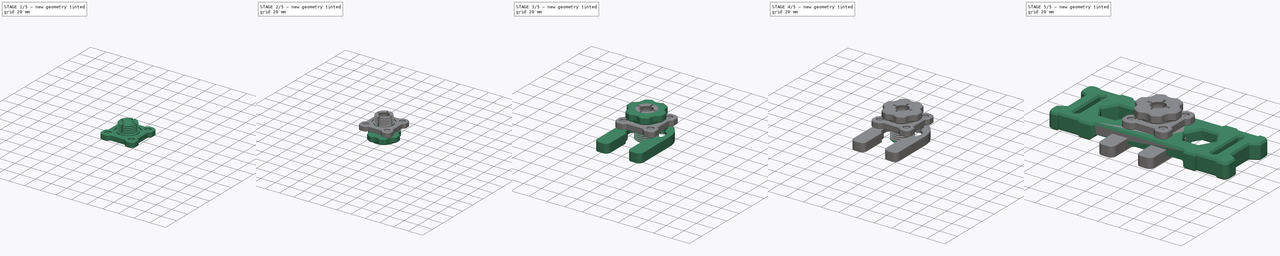
[diagram: build sequence overview — one tinted view per stage of 5, left to right]
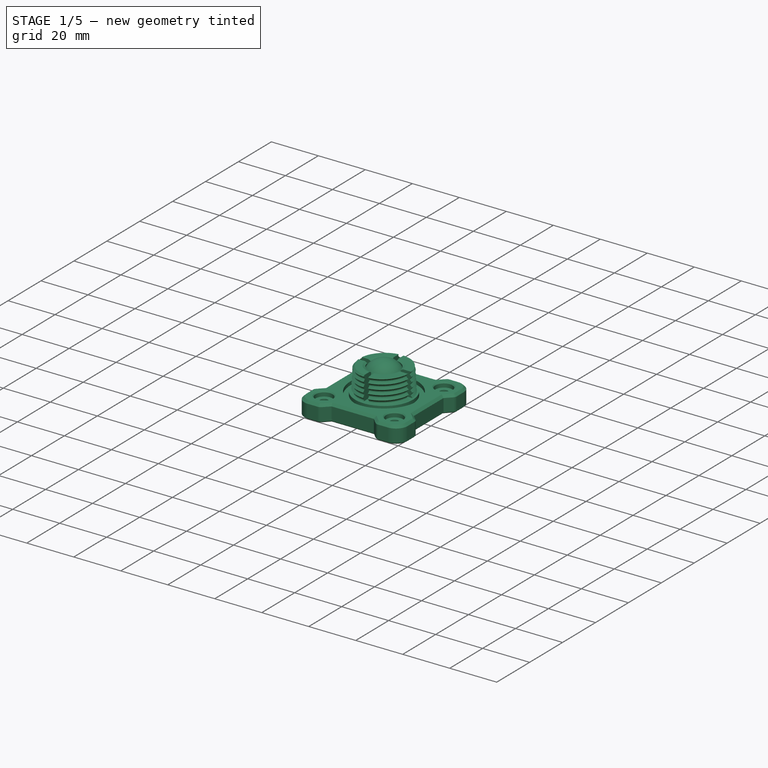
[diagram: stage 1 of 5 — iso view after this stage's code; geometry added in this stage tinted green]
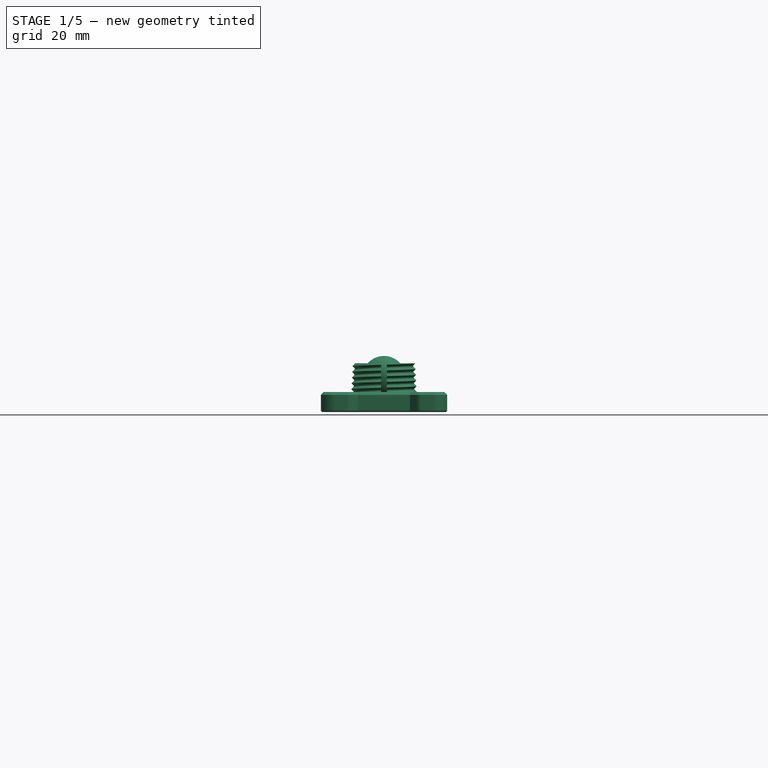
[diagram: stage 1 of 5 — front view after this stage's code; geometry added in this stage tinted green]
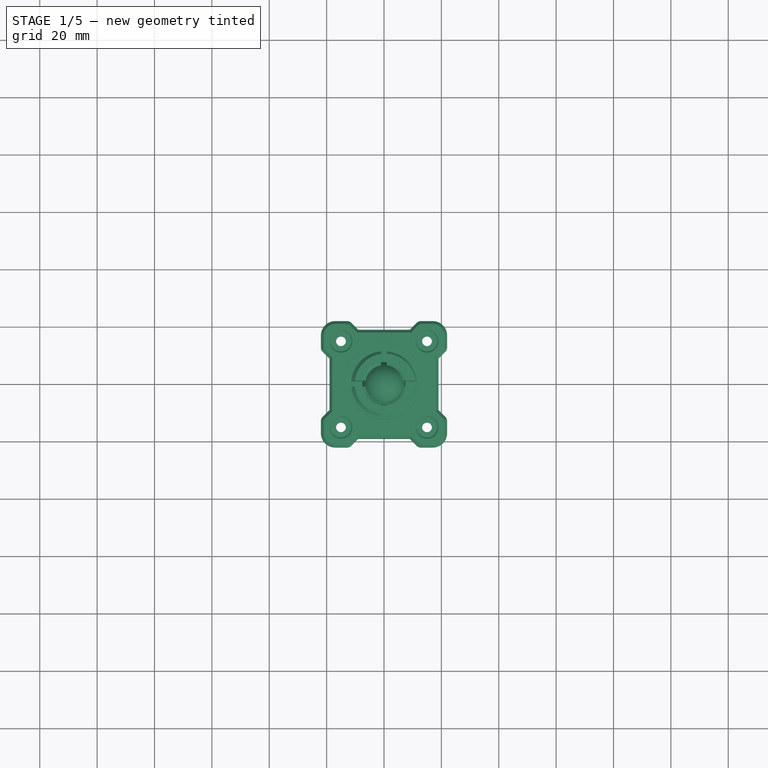
[diagram: stage 1 of 5 — top view after this stage's code; geometry added in this stage tinted green]
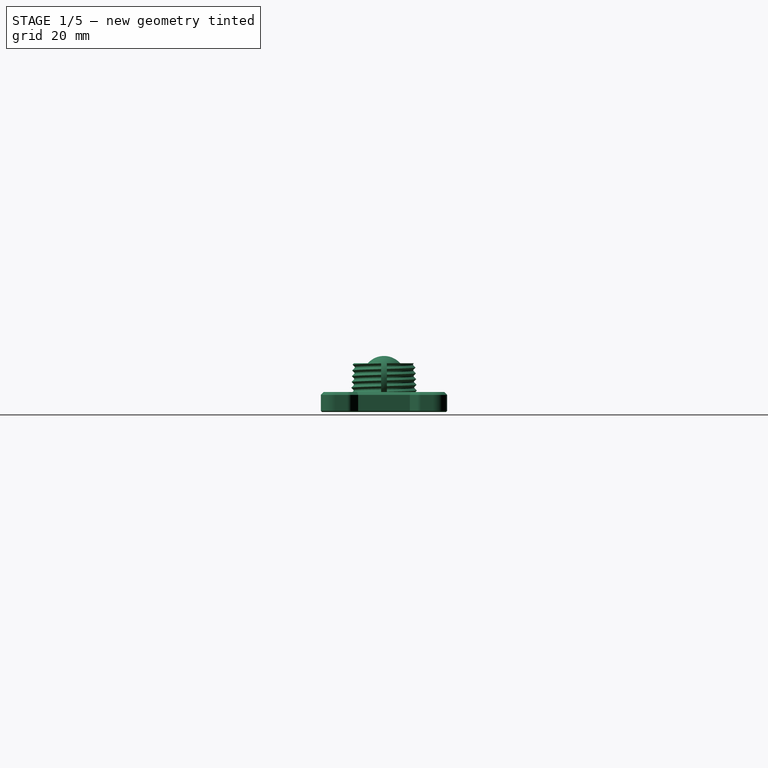
[diagram: stage 1 of 5 — right view after this stage's code; geometry added in this stage tinted green]
FCSTD DOCUMENT  (FreeCAD 0.19R24291 (Git))
Label: digital-mirror-mount
License: Other
LicenseURL: GPL3
objects: Part::Feature×19, Part::Cut×17, Part::Cylinder×16, Part::MultiFuse×12, Sketcher::SketchObject×11, Part::Chamfer×7, PartDesign::Pocket×6, PartDesign::Chamfer×6, PartDesign::Body×5, Part::Box×5, Part::Fillet×4, PartDesign::ShapeBinder×4, PartDesign::Fillet×3, Part::Sphere×3, Part::Cone×3, Part::MultiCommon×3, PartDesign::AdditivePipe×3, PartDesign::Pad×2, PartDesign::Plane×2, Part::Helix×2, +4 more types
note: 158 computed .brp shape members not serialized (recipe doc carries the construction recipe); baked Part::Feature solids carry a one-line shape summary decoded from their .brp

FEATURE [Part::Helix] Helix  label="thread-helix"
  Angle = -3
  AttacherType = Attacher::AttachEngine3D
  Height = 15
  LocalCoord = 0
  Pitch = 2
  Radius = 11
  Style = 1
FEATURE [Sketcher::SketchObject] Sketch006
  FullyConstrained = false
  MapMode = 5
  Placement = pos=(0,0,0) rot=(1,0,0;1.5708rad)
  Support = -> [XZ_Plane002]
  sketch-geometry (3):
    g0: LineSegment StartX=10.5 StartY=2 StartZ=0 EndX=10.5 EndY=0 EndZ=0
    g1: LineSegment StartX=10.5 StartY=0 StartZ=0 EndX=11.5 EndY=1 EndZ=0
    g2: LineSegment StartX=11.5 StartY=1 StartZ=0 EndX=10.5 EndY=2 EndZ=0
  constraints (4):
    c: PointOnObject(g0,g-1)
    c: Vertical(g0)
    c: Coincident(g0,g1)
    c: Coincident(g1,g2)
FEATURE [Part::Cylinder] Cylinder001
  Angle = 360
  AttacherType = Attacher::AttachEngine3D
  Height = 10
  Radius = 13
FEATURE [Part::Sphere] Sphere
  Angle1 = -90
  Angle2 = 90
  Angle3 = 360
  AttacherType = Attacher::AttachEngine3D
  Placement = pos=(0,0,5) rot=(0,0,1;0rad)
  Radius = 7.5
FEATURE [Part::Cylinder] Cylinder002
  Angle = 360
  AttacherType = Attacher::AttachEngine3D
  Height = 16
  Placement = pos=(0,0,-1) rot=(0,0,1;0rad)
  Radius = 6.5
FEATURE [Part::Box] Box  label="Cube"
  AttacherType = Attacher::AttachEngine3D
  Height = 16
  Length = 26
  Placement = pos=(-13,-1,0) rot=(0,0,1;0rad)
  Width = 2
FEATURE [Part::Box] Box001  label="Cube001"
  AttacherType = Attacher::AttachEngine3D
  Height = 16
  Length = 2
  Placement = pos=(-1,-13,0) rot=(0,0,1;0rad)
  Width = 26
FEATURE [Part::MultiFuse] Fusion001
  Shapes = -> [Box,Box001]
FEATURE [Part::Cone] Cone
  Angle = 360
  AttacherType = Attacher::AttachEngine3D
  Height = 15
  Radius1 = 10.7
  Radius2 = 9.9
FEATURE [Part::Sphere] Sphere001  label="ball-PREF"
  Angle1 = -90
  Angle2 = 90
  Angle3 = 360
  AttacherType = Attacher::AttachEngine3D
  Placement = pos=(0,0,27) rot=(0,0,1;0rad)
  Radius = 7.55
FEATURE [Part::Cylinder] Cylinder005001006  label="o-ring-cut"
  Angle = 360
  AttacherType = Attacher::AttachEngine3D
  Height = 19
  Placement = pos=(0,0,18.5) rot=(0,0,1;0rad)
  Radius = 6
FEATURE [PartDesign::Body] Body002002  label="outer-thread-profile"
  Group = -> [Sketch007,AdditivePipe001,CopyHelix001]
  Origin = -> Origin003
  Tip = -> AdditivePipe001
FEATURE [Part::Feature] Body002002004  label="inner-thread-profile001"
  Placement = pos=(0,0,-1) rot=(0,0,1;0rad)
  shape: bbox 23.67 x 24.89 x 17 mm, 26 faces (baked)
FEATURE [Part::Feature] Body002002005  label="outer-thread-profile001"
  Placement = pos=(0,0,-1) rot=(0,0,1;0rad)
  shape: bbox 23.76 x 24.1 x 17 mm, 26 faces (baked)
FEATURE [Part::MultiFuse] Fusion
  Shapes = -> [Body002002004,Cone]
FEATURE [Part::MultiCommon] Common
  Shapes = -> [Fusion,Cylinder001]
FEATURE [Part::Cut] Cut
  Base = -> Common
  Tool = -> Cylinder002
FEATURE [Part::Chamfer] Chamfer016
  Base = -> Cut
  Edges = 1 edges: [Edge12 r1=0.5 r2=1]
FEATURE [Part::Cut] Cut006006004
  Base = -> Chamfer016
  Tool = -> Sphere
FEATURE [Part::Cut] Cut006006005
  Base = -> Cut006006004
  Placement = pos=(0,0,22) rot=(0,0,1;0rad)
  Tool = -> Fusion001
FEATURE [Part::FeaturePython] Tube001  # WARN: FeaturePython — macro-defined, semantics opaque (R4)
  AttacherType = Attacher::AttachEngine3D
  Height = 2
  InnerRadius = 12.25
  OuterRadius = 14.25
  Placement = pos=(0,0,20.5) rot=(0,0,1;0rad)
FEATURE [Part::Feature] Body001002  label="ball-joint-base002"
  Placement = pos=(0,0,15) rot=(0,0,1;0rad)
  shape: bbox 44 x 44 x 7 mm, 120 faces (baked)
FEATURE [Part::MultiFuse] Fusion001011
  Shapes = -> [Cut006006005,Body001002]
FEATURE [Part::Cut] Cut006006020
  Base = -> Fusion001011
  Tool = -> Tube001
FEATURE [Part::Cut] Cut006006021
  Base = -> Cut006006020
  Tool = -> Cylinder005001006
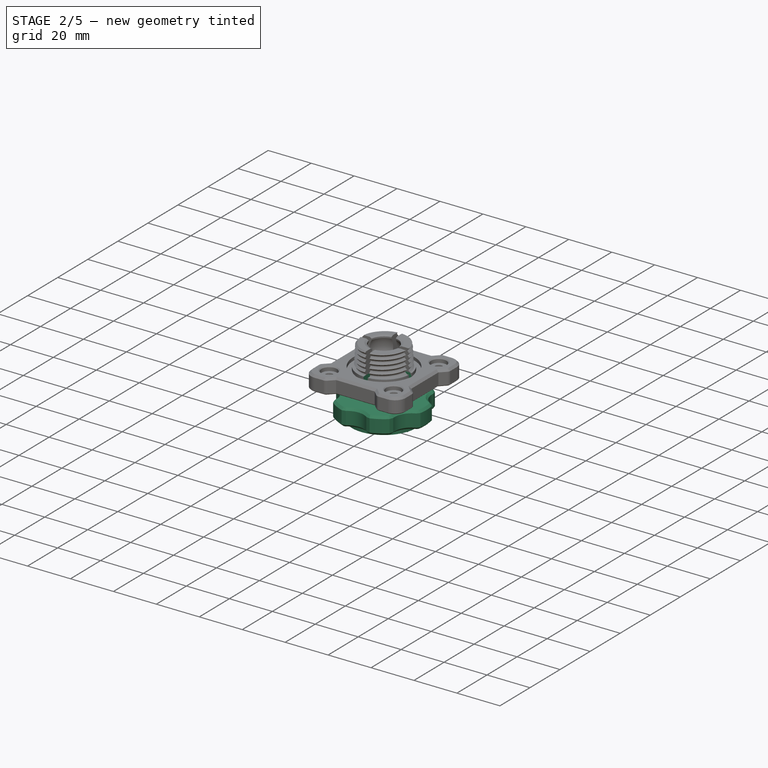
[diagram: stage 2 of 5 — iso view after this stage's code; geometry added in this stage tinted green]
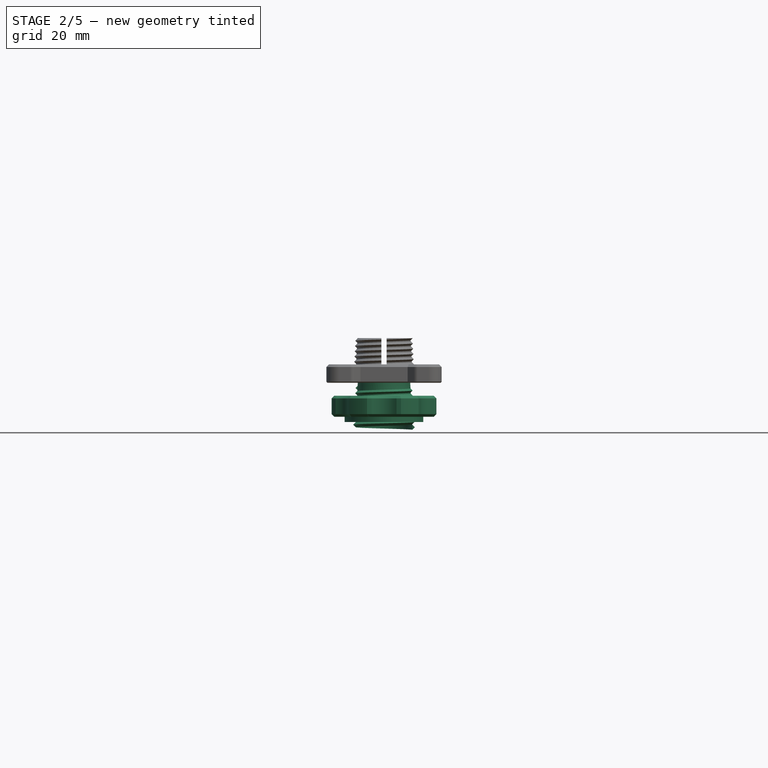
[diagram: stage 2 of 5 — front view after this stage's code; geometry added in this stage tinted green]
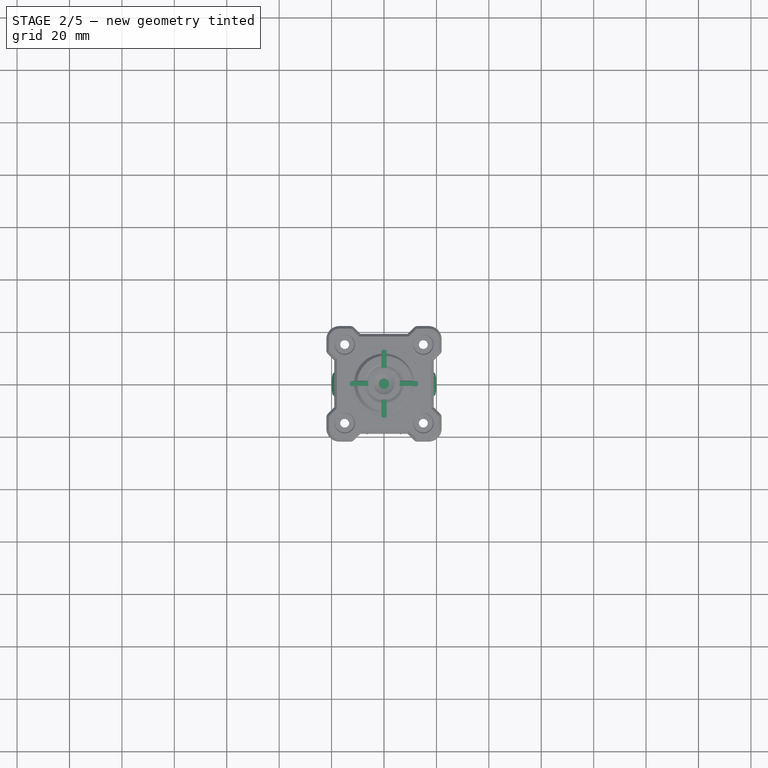
[diagram: stage 2 of 5 — top view after this stage's code; geometry added in this stage tinted green]
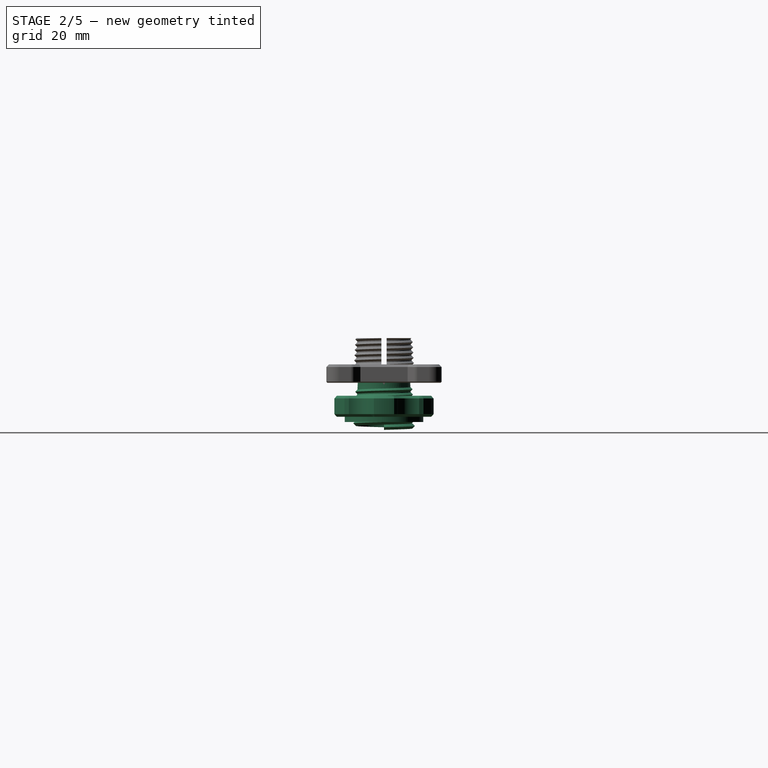
[diagram: stage 2 of 5 — right view after this stage's code; geometry added in this stage tinted green]
FEATURE [Part::Fillet] Fillet003
  Base = -> Fusion001001
  Edges = 8 edges r=0.75: [Edge1,Edge3,Edge15,Edge20,Edge29,Edge36,Edge43,Edge44]
  Placement = pos=(0,0,1) rot=(0,0,1;0rad)
FEATURE [Part::Helix] Helix001  label="narrow-thread"
  Angle = -3.5
  AttacherType = Attacher::AttachEngine3D
  Height = 15
  LocalCoord = 0
  Pitch = 2
  Radius = 11
  Style = 1
FEATURE [Sketcher::SketchObject] Sketch010
  FullyConstrained = true
  MapMode = 5
  Placement = pos=(0,0,0) rot=(1,0,0;1.5708rad)
  Support = -> [XZ_Plane004]
  sketch-geometry (3):
    g0: LineSegment StartX=10.8 StartY=0 StartZ=0 EndX=10.8 EndY=2 EndZ=0
    g1: LineSegment StartX=10.8 StartY=2 StartZ=0 EndX=11.8 EndY=1 EndZ=0
    g2: LineSegment StartX=11.8 StartY=1 StartZ=0 EndX=10.8 EndY=0 EndZ=0
  constraints (9):
    c: PointOnObject(g0,g-1)
    c: Vertical(g0)
    c: Coincident(g0,g1)
    c: Coincident(g1,g2)
    c: Coincident(g2,g0)
    c: DistanceX(g0,g1) = 1
    c: DistanceY(g0,g0) = 2
    c: DistanceY(g0,g1) = 1
    c: DistanceX(g-1,g0) = 10.8
FEATURE [PartDesign::ShapeBinder] CopyHelix001001
  TraceSupport = false
FEATURE [Part::Cylinder] Cylinder005001010001006
  Angle = 360
  AttacherType = Attacher::AttachEngine3D
  Height = 10
  Radius = 20
FEATURE [Part::Cylinder] Cylinder005001010001007
  Angle = 360
  AttacherType = Attacher::AttachEngine3D
  Height = 10
  Placement = pos=(0,25,0) rot=(0,0,1;0rad)
  Radius = 8
FEATURE [Part::Feature] Cylinder005001010001008
  Placement = pos=(0,0,0) rot=(0,0,-1;1.0472rad)
  shape: bbox 16 x 16 x 10 mm, 3 faces (baked)
FEATURE [Part::Feature] Cylinder005001010001009
  Placement = pos=(0,0,0) rot=(0,0,1;4.18879rad)
  shape: bbox 16 x 16 x 10 mm, 3 faces (baked)
FEATURE [Part::Feature] Cylinder005001010001010
  Placement = pos=(0,0,0) rot=(0,0,1;3.14159rad)
  shape: bbox 16 x 16 x 10 mm, 3 faces (baked)
FEATURE [Part::Feature] Cylinder005001010001011
  Placement = pos=(0,0,0) rot=(0,0,1;2.0944rad)
  shape: bbox 16 x 16 x 10 mm, 3 faces (baked)
FEATURE [Part::Feature] Cylinder005001010001012
  Placement = pos=(0,0,0) rot=(0,0,1;1.0472rad)
  shape: bbox 16 x 16 x 10 mm, 3 faces (baked)
FEATURE [Part::MultiFuse] Fusion001008
  Shapes = -> [Cylinder005001010001012,Cylinder005001010001011,Cylinder005001010001010,Cylinder005001010001009,Cylinder005001010001008,Cylinder005001010001007]
FEATURE [Part::Cut] Cut006006014
  Base = -> Cylinder005001010001006
  Tool = -> Fusion001008
FEATURE [Part::Cylinder] Cylinder005001010001013
  Angle = 360
  AttacherType = Attacher::AttachEngine3D
  Height = 2
  Radius = 15
FEATURE [Part::Cylinder] Cylinder005001010001014
  Angle = 360
  AttacherType = Attacher::AttachEngine3D
  Height = 12
  Placement = pos=(0,0,2) rot=(0,0,1;0rad)
  Radius = 25
FEATURE [Part::MultiFuse] Fusion001009
  Shapes = -> [Cylinder005001010001014,Cylinder005001010001013]
FEATURE [Part::MultiCommon] Common002
  Shapes = -> [Cut006006014,Fusion001009]
FEATURE [Part::Chamfer] Chamfer019
  Base = -> Common002
  Edges = 38 edges r=1: [Edge1,Edge2,Edge3,Edge5,Edge6,Edge7,Edge8,Edge9,Edge10,Edge11,Edge12,Edge13,Edge14,Edge15,Edge16,Edge18,Edge19,Edge20,Edge21,Edge22,Edge23,Edge24,Edge25,Edge26,Edge27,Edge28,Edge29,Edge30,Edge31,Edge32,Edge33,Edge34,Edge35,Edge36,Edge37,Edge38,Edge39,Edge40]
FEATURE [Part::Cone] Cone002
  Angle = 360
  AttacherType = Attacher::AttachEngine3D
  Height = 15
  Radius1 = 10.8
  Radius2 = 10
FEATURE [PartDesign::Body] Body002002006  label="outer-narrow-thread-profile"
  Group = -> [Sketch010,CopyHelix001001,AdditivePipe002,CopyHelix001002]
  Origin = -> Origin004
  Tip = -> AdditivePipe002
FEATURE [Part::Feature] Body002002006001  label="outer-narrow-thread-profile001"
  Placement = pos=(0,0,-3) rot=(0,0,1;0rad)
  shape: bbox 23.94 x 24.28 x 17 mm, 26 faces (baked)
FEATURE [Part::MultiFuse] Fusion001010
  Shapes = -> [Body002002006001,Cone002]
FEATURE [Part::FeaturePython] Tube  # WARN: FeaturePython — macro-defined, semantics opaque (R4)
  AttacherType = Attacher::AttachEngine3D
  Height = 2
  InnerRadius = 2
  OuterRadius = 4
  Placement = pos=(0,0,18.5) rot=(0,0,1;0rad)
FEATURE [Part::Sphere] Sphere002  label="inner-ring-ball-pref"
  Angle1 = -90
  Angle2 = 90
  Angle3 = 360
  AttacherType = Attacher::AttachEngine3D
  Placement = pos=(0,0,27) rot=(0,0,1;0rad)
  Radius = 7.75
FEATURE [Part::Cut] Cut006006022
  Base = -> Tube
  Tool = -> Sphere002
FEATURE [Part::Cut] Cut006006023
  Base = -> Cut006006021
  Tool = -> Sphere001
FEATURE [Part::Chamfer] Chamfer021
  Base = -> Cut006006023
  Edges = 4 edges r=1: [Edge308,Edge352,Edge397,Edge441]
FEATURE [Part::Cut] Cut006006024
  Base = -> Chamfer021
  Tool = -> Fillet003
FEATURE [Part::MultiFuse] Fusion001012
  Shapes = -> [Cut006006024,Cut006006022]
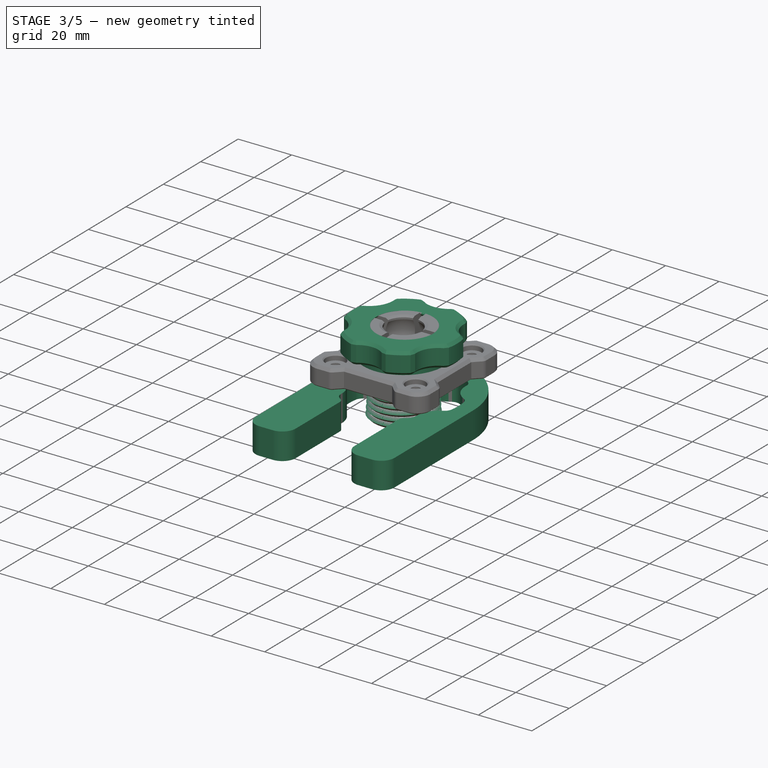
[diagram: stage 3 of 5 — iso view after this stage's code; geometry added in this stage tinted green]
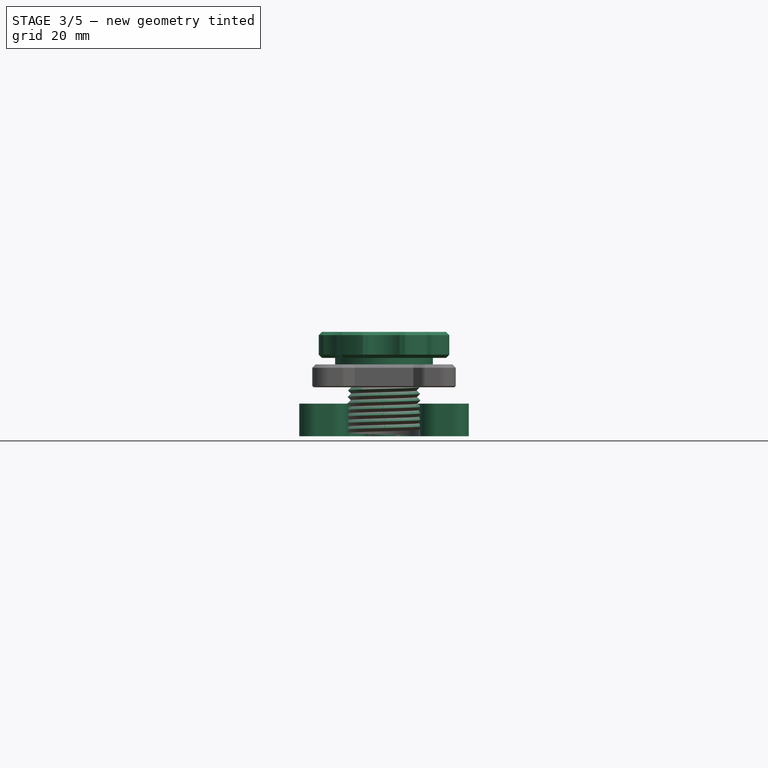
[diagram: stage 3 of 5 — front view after this stage's code; geometry added in this stage tinted green]
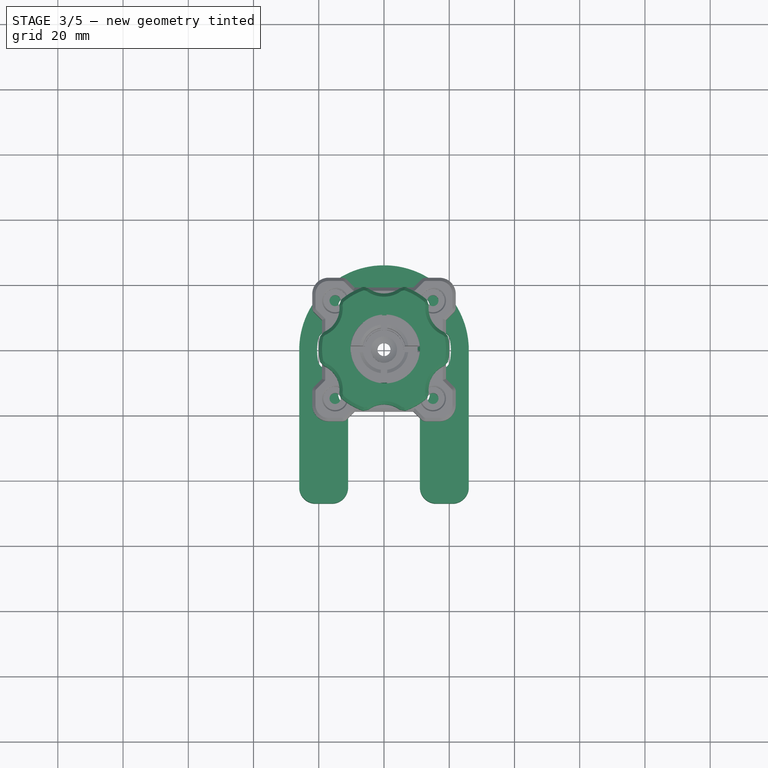
[diagram: stage 3 of 5 — top view after this stage's code; geometry added in this stage tinted green]
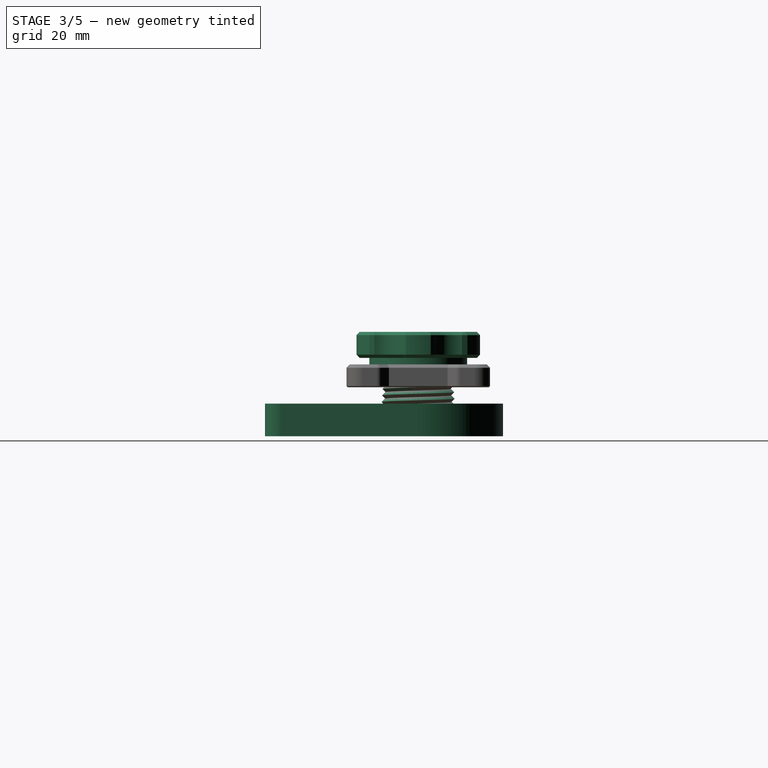
[diagram: stage 3 of 5 — right view after this stage's code; geometry added in this stage tinted green]
FEATURE [Part::Cylinder] Cylinder
  Angle = 360
  AttacherType = Attacher::AttachEngine3D
  Height = 10
  Radius = 20.5
FEATURE [Part::Cylinder] Cylinder005001010
  Angle = 360
  AttacherType = Attacher::AttachEngine3D
  Height = 10
  Placement = pos=(0,26,0) rot=(0,0,1;0rad)
  Radius = 8.5
FEATURE [Part::Feature] Cylinder005001010001001
  Placement = pos=(0,0,0) rot=(0,0,-1;1.0472rad)
  shape: bbox 17 x 17 x 10 mm, 3 faces (baked)
FEATURE [Part::Feature] Cylinder005001010001002
  Placement = pos=(0,0,0) rot=(0,0,1;4.18879rad)
  shape: bbox 17 x 17 x 10 mm, 3 faces (baked)
FEATURE [Part::Feature] Cylinder005001010001003
  Placement = pos=(0,0,0) rot=(0,0,1;2.0944rad)
  shape: bbox 17 x 17 x 10 mm, 3 faces (baked)
FEATURE [Part::Feature] Cylinder005001010001004
  Placement = pos=(0,0,0) rot=(0,0,1;1.0472rad)
  shape: bbox 17 x 17 x 10 mm, 3 faces (baked)
FEATURE [Part::MultiFuse] Fusion001006
  Shapes = -> [Cylinder005001010001004,Cylinder005001010001003,Cylinder005001010001002,Cylinder005001010001001,Cylinder005001010]
FEATURE [Part::Cut] Cut006006011
  Base = -> Cylinder
  Tool = -> Fusion001006
FEATURE [Part::Fillet] Fillet004
  Base = -> Cut006006011
  Edges = 10 edges r=3: [Edge3,Edge6,Edge18,Edge27,Edge28,Edge29,Edge30,Edge31,Edge32,Edge33]
FEATURE [Part::Cylinder] Cylinder005001010001005
  Angle = 360
  AttacherType = Attacher::AttachEngine3D
  Height = 10
  Radius = 26
FEATURE [Part::Box] Box002  label="Cube002"
  AttacherType = Attacher::AttachEngine3D
  Height = 10
  Length = 15
  Placement = pos=(-26,-47,0) rot=(0,0,1;0rad)
  Width = 47
FEATURE [Part::Box] Box003  label="Cube003"
  AttacherType = Attacher::AttachEngine3D
  Height = 10
  Length = 15
  Placement = pos=(11,-47,0) rot=(0,0,1;0rad)
  Width = 47
FEATURE [Part::MultiFuse] Fusion001007
  Shapes = -> [Box002,Cylinder005001010001005,Box003]
FEATURE [Part::Box] Box004  label="Cube004"
  AttacherType = Attacher::AttachEngine3D
  Height = 10
  Length = 22
  Placement = pos=(-11,-47,0) rot=(0,0,1;0rad)
  Width = 47
FEATURE [Part::Cut] Cut006006012
  Base = -> Fusion001007
  Tool = -> Box004
FEATURE [Part::Cut] Cut006006013
  Base = -> Cut006006012
  Refine = true
  Tool = -> Fillet004
FEATURE [Part::Fillet] Fillet005
  Base = -> Cut006006013
  Edges = 2 edges r=2: [Edge50,Edge65]
FEATURE [Part::Fillet] Fillet006
  Base = -> Fillet005
  Edges = 4 edges r=5: [Edge69,Edge70,Edge74,Edge76]
FEATURE [Part::Cylinder] Cylinder005001010001015
  Angle = 360
  AttacherType = Attacher::AttachEngine3D
  Height = 10
  Placement = pos=(0,0,-9.5) rot=(0,0,1;0rad)
  Radius = 11.5
FEATURE [Part::Chamfer] Chamfer020
  Base = -> Cylinder005001010001015
  Edges = 1 edges r=0.5: [Edge1]
FEATURE [PartDesign::ShapeBinder] CopyHelix001002
  TraceSupport = false
FEATURE [PartDesign::AdditivePipe] AdditivePipe002
  AuxilleryCurvelinear = true
  AuxillerySpineTangent = false
  Binormal = (0,0,0)
  Mode = 2
  Placement = pos=(0,0,0) rot=(1,0,0;1.5708rad)
  Profile = -> Sketch010
  Spine = -> CopyHelix001002
  SpineTangent = false
  Transformation = 0
  Transition = 0
FEATURE [Part::Cut] Cut006006015
  Base = -> Chamfer019
  Tool = -> Fusion001010
FEATURE [Part::Cut] Cut006006016  label="narrow-knob"
  Base = -> Cut006006015
  Placement = pos=(0,0,22) rot=(0,0,1;0rad)
  Tool = -> Chamfer020
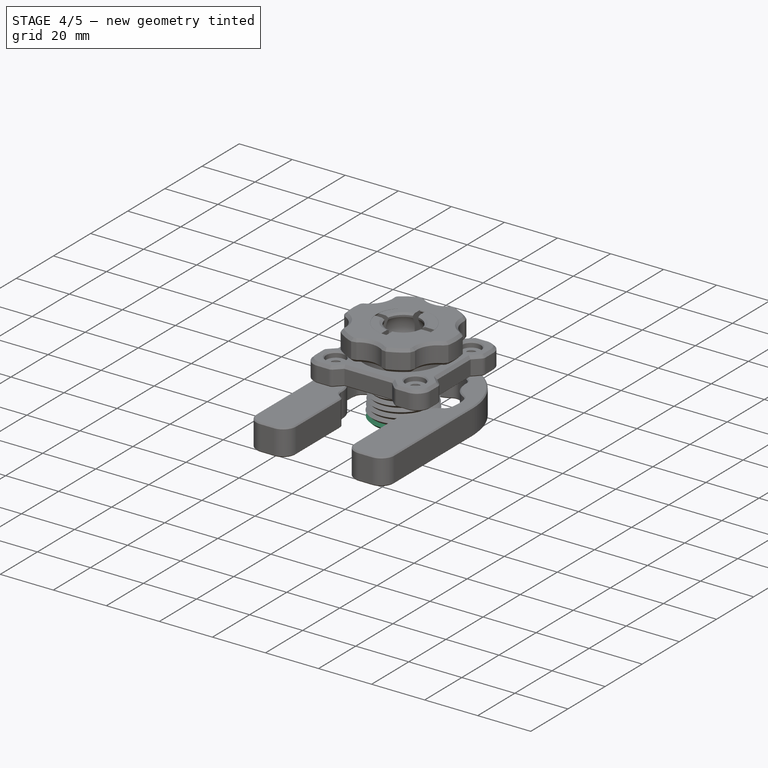
[diagram: stage 4 of 5 — iso view after this stage's code; geometry added in this stage tinted green]
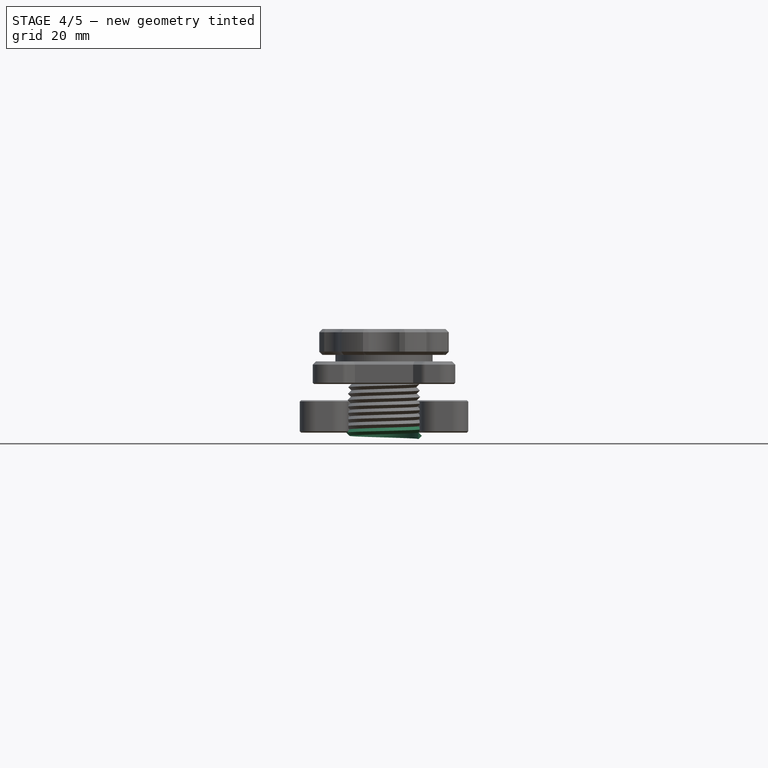
[diagram: stage 4 of 5 — front view after this stage's code; geometry added in this stage tinted green]
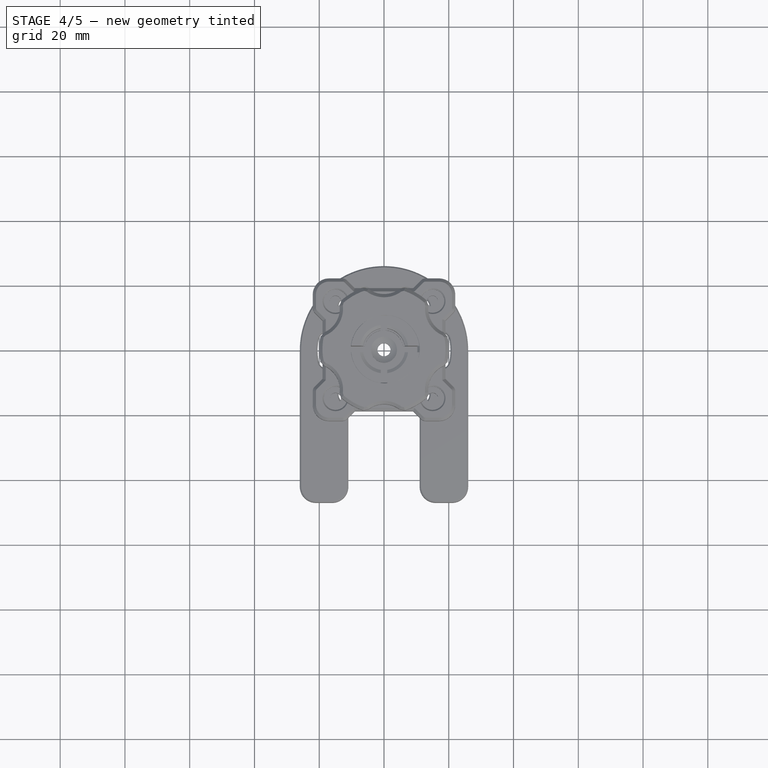
[diagram: stage 4 of 5 — top view after this stage's code; geometry added in this stage tinted green]
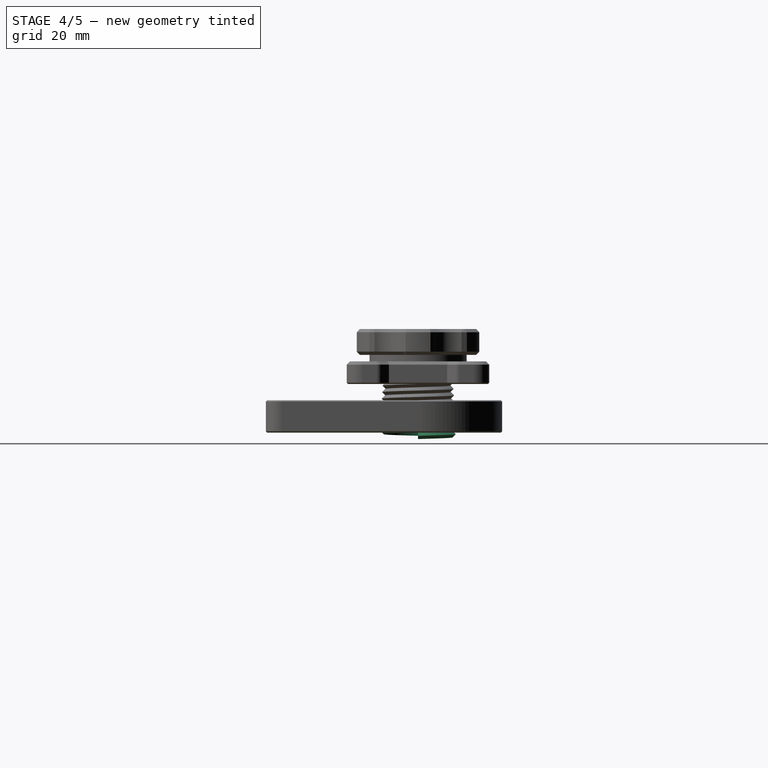
[diagram: stage 4 of 5 — right view after this stage's code; geometry added in this stage tinted green]
FEATURE [Sketcher::SketchObject] Sketch007
  FullyConstrained = false
  MapMode = 5
  Placement = pos=(0,0,0) rot=(1,0,0;1.5708rad)
  Support = -> [XZ_Plane003]
  expr: Constraints[7] = 10.6
  sketch-geometry (3):
    g0: LineSegment StartX=10.6 StartY=0 StartZ=0 EndX=10.6 EndY=2 EndZ=0
    g1: LineSegment StartX=10.6 StartY=2 StartZ=0 EndX=11.6 EndY=1 EndZ=0
    g2: LineSegment StartX=11.6 StartY=1 StartZ=0 EndX=10.6 EndY=0 EndZ=0
  constraints (8):
    c: Vertical(g0)
    c: Coincident(g0,g1)
    c: Coincident(g1,g2)
    c: Coincident(g2,g0)
    c: DistanceY(g0,g0) = 2
    c: DistanceY(g1,g0) = 1
    c: DistanceX(g0,g1) = 1
    c: DistanceX(g-1,g0) = 10.6
FEATURE [Part::Cylinder] Cylinder004
  Angle = 360
  AttacherType = Attacher::AttachEngine3D
  Height = 10
  Radius = 20
FEATURE [Part::Cylinder] Cylinder005
  Angle = 360
  AttacherType = Attacher::AttachEngine3D
  Height = 10
  Placement = pos=(0,25,0) rot=(0,0,1;0rad)
  Radius = 8
FEATURE [Part::Feature] Cylinder005001001
  Placement = pos=(0,0,0) rot=(0,0,-1;1.0472rad)
  shape: bbox 16 x 16 x 10 mm, 3 faces (baked)
FEATURE [Part::Feature] Cylinder005001002
  Placement = pos=(0,0,0) rot=(0,0,1;4.18879rad)
  shape: bbox 16 x 16 x 10 mm, 3 faces (baked)
FEATURE [Part::Feature] Cylinder005001003
  Placement = pos=(0,0,0) rot=(0,0,1;3.14159rad)
  shape: bbox 16 x 16 x 10 mm, 3 faces (baked)
FEATURE [Part::Feature] Cylinder005001004
  Placement = pos=(0,0,0) rot=(0,0,1;2.0944rad)
  shape: bbox 16 x 16 x 10 mm, 3 faces (baked)
FEATURE [Part::Feature] Cylinder005001005
  Placement = pos=(0,0,0) rot=(0,0,1;1.0472rad)
  shape: bbox 16 x 16 x 10 mm, 3 faces (baked)
FEATURE [Part::MultiFuse] Fusion003
  Shapes = -> [Cylinder005001005,Cylinder005001004,Cylinder005001003,Cylinder005001002,Cylinder005001001,Cylinder005]
FEATURE [Part::Cut] Cut003
  Base = -> Cylinder004
  Tool = -> Fusion003
FEATURE [Part::Cylinder] Cylinder005001007
  Angle = 360
  AttacherType = Attacher::AttachEngine3D
  Height = 2
  Radius = 15
FEATURE [Part::Cylinder] Cylinder005001008
  Angle = 360
  AttacherType = Attacher::AttachEngine3D
  Height = 12
  Placement = pos=(0,0,2) rot=(0,0,1;0rad)
  Radius = 25
FEATURE [Part::MultiFuse] Fusion007
  Shapes = -> [Cylinder005001008,Cylinder005001007]
FEATURE [Part::MultiCommon] Common001
  Shapes = -> [Cut003,Fusion007]
FEATURE [Part::Chamfer] Chamfer009
  Base = -> Common001
  Edges = 38 edges r=1: [Edge1,Edge2,Edge3,Edge5,Edge6,Edge7,Edge8,Edge9,Edge10,Edge11,Edge12,Edge13,Edge14,Edge15,Edge16,Edge18,Edge19,Edge20,Edge21,Edge22,Edge23,Edge24,Edge25,Edge26,Edge27,Edge28,Edge29,Edge30,Edge31,Edge32,Edge33,Edge34,Edge35,Edge36,Edge37,Edge38,Edge39,Edge40]
FEATURE [Part::Cylinder] Cylinder005001009
  Angle = 360
  AttacherType = Attacher::AttachEngine3D
  Height = 10
  Placement = pos=(0,0,-9.5) rot=(0,0,1;0rad)
  Radius = 11.5
FEATURE [Part::Chamfer] Chamfer010
  Base = -> Cylinder005001009
  Edges = 1 edges r=0.5: [Edge1]
FEATURE [PartDesign::Body] Body001  label="ball-joint-base"
  Group = -> [Sketch004,Pad001,Sketch005,Pocket003,Fillet001,Sketch008,Pocket004,PolarPattern,Fillet002,Chamfer013,Chamfer014,Sketch009,Pocket005,Chamfer015]
  Origin = -> Origin001
  Placement = pos=(0,0,15) rot=(0,0,1;0rad)
  Tip = -> Chamfer015
FEATURE [Part::Torus] Torus001  label="outer-o-ring"
  Angle1 = -180
  Angle2 = 180
  Angle3 = 360
  AttacherType = Attacher::AttachEngine3D
  Placement = pos=(0,0,21.5) rot=(0,0,1;0rad)
  Radius1 = 13.25
  Radius2 = 1
FEATURE [PartDesign::ShapeBinder] CopyHelix
  TraceSupport = false
FEATURE [PartDesign::AdditivePipe] AdditivePipe
  AuxilleryCurvelinear = true
  AuxillerySpineTangent = false
  Binormal = (0,0,0)
  Mode = 2
  Placement = pos=(0,0,0) rot=(1,0,0;1.5708rad)
  Profile = -> Sketch006
  Spine = -> CopyHelix
  SpineTangent = false
  Transformation = 0
  Transition = 0
FEATURE [PartDesign::Body] Body002  label="inner-thread-profile"
  Group = -> [Sketch006,AdditivePipe,CopyHelix]
  Origin = -> Origin002
  Tip = -> AdditivePipe
FEATURE [PartDesign::ShapeBinder] CopyHelix001
  TraceSupport = false
FEATURE [PartDesign::AdditivePipe] AdditivePipe001
  AuxilleryCurvelinear = true
  AuxillerySpineTangent = false
  Binormal = (0,0,0)
  Mode = 2
  Placement = pos=(0,0,0) rot=(1,0,0;1.5708rad)
  Profile = -> Sketch007
  Spine = -> CopyHelix001
  SpineTangent = false
  Transformation = 0
  Transition = 0
FEATURE [Part::Cone] Cone001
  Angle = 360
  AttacherType = Attacher::AttachEngine3D
  Height = 15
  Radius1 = 10.8
  Radius2 = 10
FEATURE [Part::MultiFuse] Fusion001005
  Shapes = -> [Body002002005,Cone001]
FEATURE [Part::Cut] Cut006006008
  Base = -> Chamfer009
  Tool = -> Fusion001005
FEATURE [Part::Cut] Cut006006009  label="knob-straight"
  Base = -> Cut006006008
  Placement = pos=(0,0,22) rot=(0,0,1;0rad)
  Tool = -> Chamfer010
FEATURE [Part::Chamfer] Chamfer018  label="handler"
  Base = -> Fillet006
  Edges = 72 edges r=0.4: [Edge1,Edge2,Edge3,Edge4,Edge5,Edge6,Edge7,Edge8,Edge9,Edge10,Edge11,Edge12,Edge13,Edge14,Edge15,Edge16,Edge17,Edge18,Edge19,Edge20,Edge21,Edge22,Edge23,Edge24,Edge25,Edge26,Edge27,Edge28,Edge29,Edge30,Edge31,Edge32,Edge33,Edge34,Edge35,Edge36,Edge38,Edge40,Edge42,Edge44,Edge47,Edge48,Edge50,Edge52,+28 more]
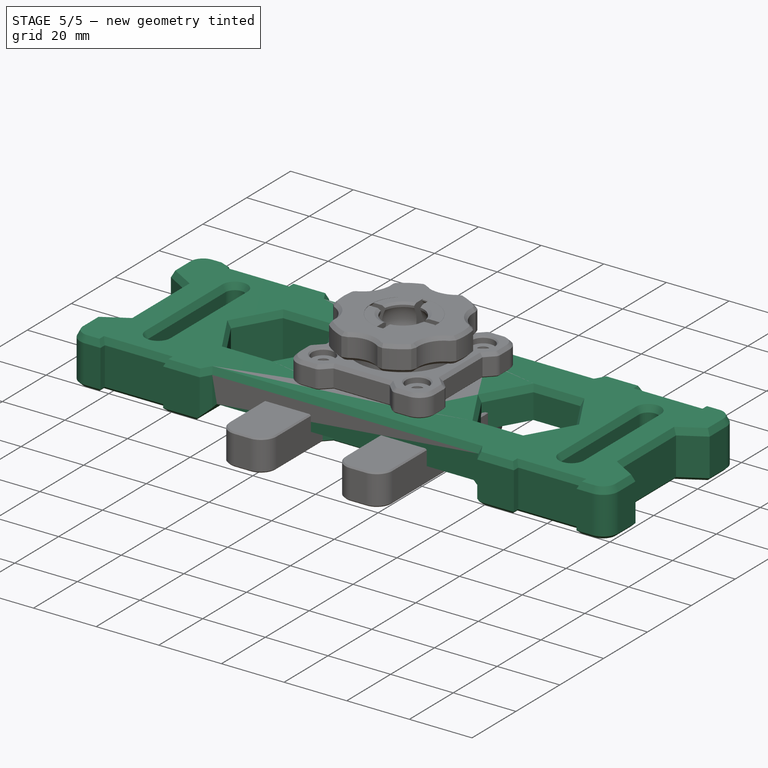
[diagram: stage 5 of 5 — iso view after this stage's code; geometry added in this stage tinted green]
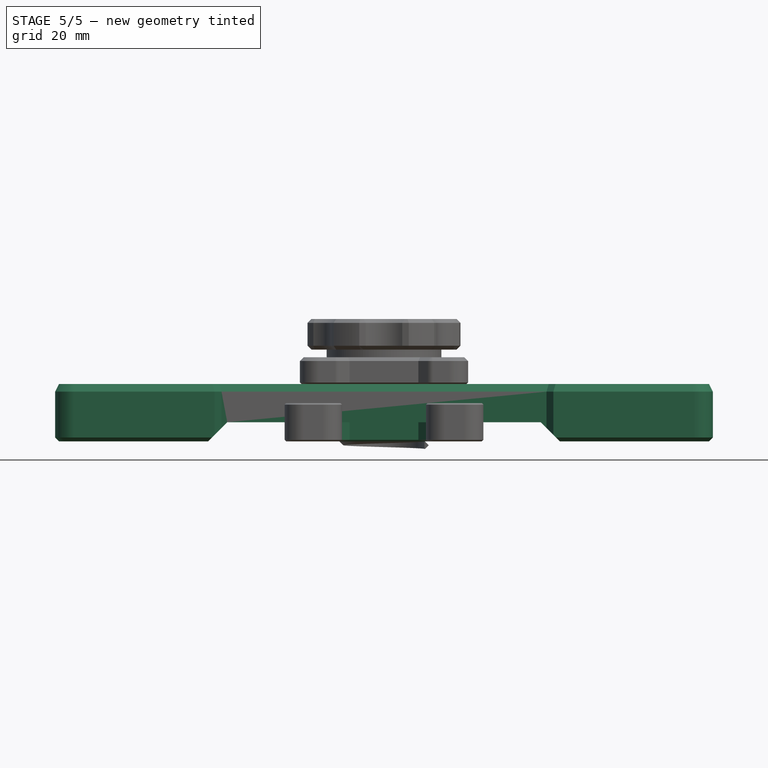
[diagram: stage 5 of 5 — front view after this stage's code; geometry added in this stage tinted green]
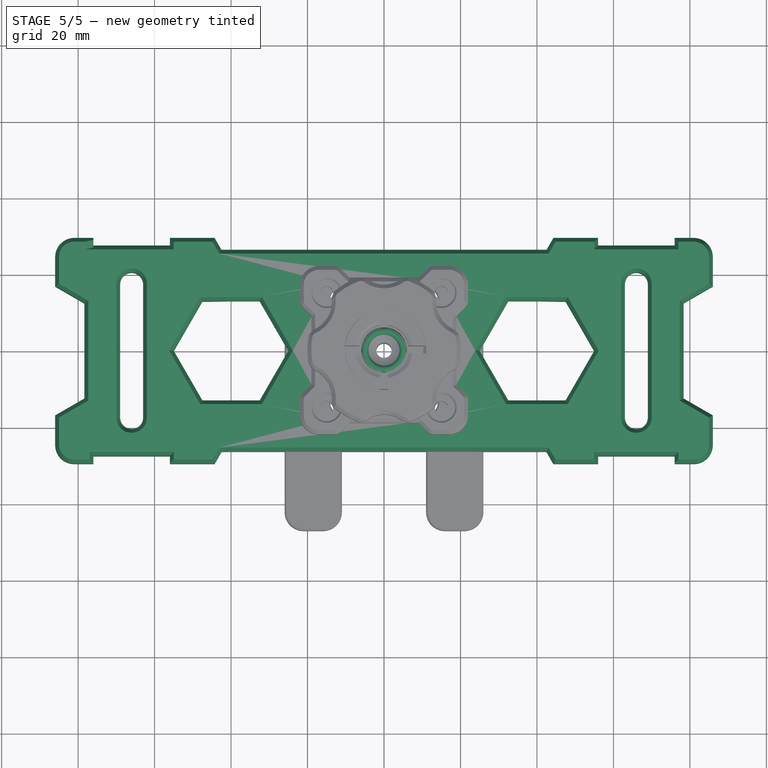
[diagram: stage 5 of 5 — top view after this stage's code; geometry added in this stage tinted green]
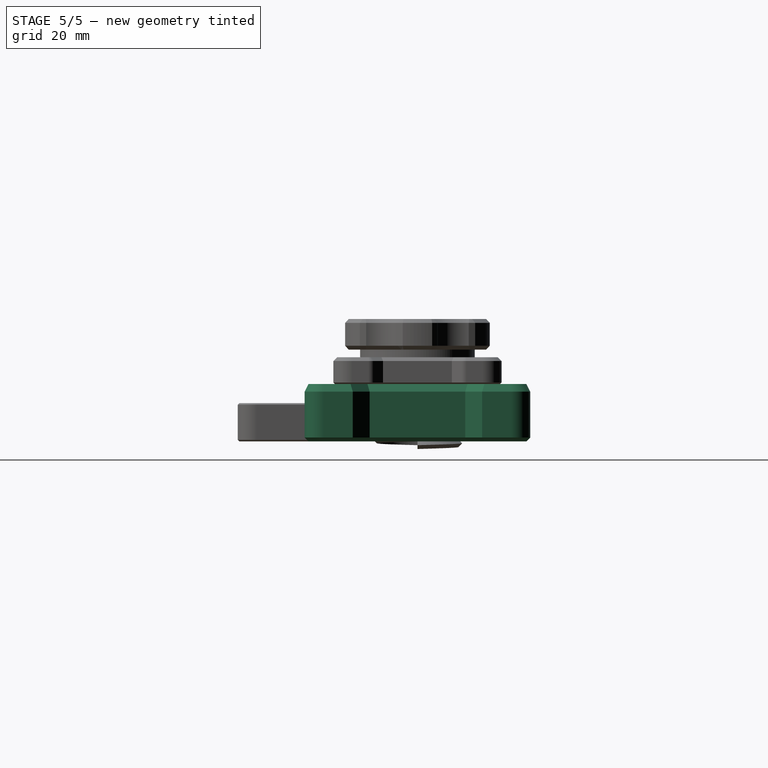
[diagram: stage 5 of 5 — right view after this stage's code; geometry added in this stage tinted green]
FEATURE [Spreadsheet::Sheet] Spreadsheet  label="args"
  cells = A1=middle_space; B1(middle_space)=112; A2=heigh; B2(base_heigh)=55; A3=arm_width; B3(arm_width)=20; A4=camera_clearance; B4(camera_clearance)=17; A5=arm_clearance; B5(arm_clearance)=0; A6=heigh_extend; B6(heigh_extend)=2; A7=base_thickness; B7(base_thickness)=15; A8=base_cutout; B8(base_cutout)=5; A9=bolt_radius; B9(bolt_radius)=1.9; A10=thread_radius; B10(thread_radius)=11; A11=thread_clearance; B11(thread_clearance)=0.25
FEATURE [Sketcher::SketchObject] Sketch
  FullyConstrained = true
  MapMode = 5
  Support = -> [XY_Plane]
  expr: Constraints[57] = <<args>>.base_heigh / 2
  expr: Constraints[51] = 10 - <<args>>.arm_clearance
  expr: Constraints[58] = <<args>>.base_heigh / 2 + <<args>>.heigh_extend
  expr: Constraints[49] = 10 - <<args>>.arm_clearance
  expr: Constraints[50] = 10 - <<args>>.arm_clearance
  expr: Constraints[55] = <<args>>.arm_width + 2 * <<args>>.arm_clearance
  expr: Constraints[54] = <<args>>.arm_width + 2 * <<args>>.arm_clearance
  expr: Constraints[53] = <<args>>.arm_width + 2 * <<args>>.arm_clearance
  expr: Constraints[56] = <<args>>.base_heigh / 2
  expr: Constraints[48] = 10 - <<args>>.arm_clearance
  expr: Constraints[52] = <<args>>.arm_width + 2 * <<args>>.arm_clearance
  expr: Constraints[59] = <<args>>.base_heigh / 2 + <<args>>.heigh_extend
  expr: Constraints[47] = (<<args>>.middle_space + 2 * <<args>>.arm_width + 20) / 2
  expr: Constraints[46] = <<args>>.middle_space + 2 * <<args>>.arm_width + 20
  sketch-geometry (20):
    g0: LineSegment StartX=-86 StartY=29.5 StartZ=0 EndX=-76 EndY=29.5 EndZ=0
    g1: LineSegment StartX=-76 StartY=29.5 StartZ=0 EndX=-76 EndY=27.5 EndZ=0
    g2: LineSegment StartX=-76 StartY=27.5 StartZ=0 EndX=-56 EndY=27.5 EndZ=0
    g3: LineSegment StartX=-56 StartY=27.5 StartZ=0 EndX=-56 EndY=29.5 EndZ=0
    g4: LineSegment StartX=-56 StartY=29.5 StartZ=0 EndX=56 EndY=29.5 EndZ=0
    g5: LineSegment StartX=56 StartY=29.5 StartZ=0 EndX=56 EndY=27.5 EndZ=0
    g6: LineSegment StartX=56 StartY=27.5 StartZ=0 EndX=76 EndY=27.5 EndZ=0
    g7: LineSegment StartX=76 StartY=27.5 StartZ=0 EndX=76 EndY=29.5 EndZ=0
    g8: LineSegment StartX=76 StartY=29.5 StartZ=0 EndX=86 EndY=29.5 EndZ=0
    g9: LineSegment StartX=86 StartY=29.5 StartZ=0 EndX=86 EndY=-29.5 EndZ=0
    g10: LineSegment StartX=86 StartY=-29.5 StartZ=0 EndX=76 EndY=-29.5 EndZ=0
    g11: LineSegment StartX=76 StartY=-29.5 StartZ=0 EndX=76 EndY=-27.5 EndZ=0
    g12: LineSegment StartX=76 StartY=-27.5 StartZ=0 EndX=56 EndY=-27.5 EndZ=0
    g13: LineSegment StartX=56 StartY=-27.5 StartZ=0 EndX=56 EndY=-29.5 EndZ=0
    g14: LineSegment StartX=56 StartY=-29.5 StartZ=0 EndX=-56 EndY=-29.5 EndZ=0
    g15: LineSegment StartX=-56 StartY=-29.5 StartZ=0 EndX=-56 EndY=-27.5 EndZ=0
    g16: LineSegment StartX=-56 StartY=-27.5 StartZ=0 EndX=-76 EndY=-27.5 EndZ=0
    g17: LineSegment StartX=-76 StartY=-27.5 StartZ=0 EndX=-76 EndY=-29.5 EndZ=0
    g18: LineSegment StartX=-76 StartY=-29.5 StartZ=0 EndX=-86 EndY=-29.5 EndZ=0
    g19: LineSegment StartX=-86 StartY=-29.5 StartZ=0 EndX=-86 EndY=29.5 EndZ=0
  constraints (60):
    c: Horizontal(g0)
    c: Coincident(g0,g1)
    c: Vertical(g1)
    c: Coincident(g1,g2)
    c: Horizontal(g2)
    c: Coincident(g2,g3)
    c: Vertical(g3)
    c: Coincident(g3,g4)
    c: Horizontal(g4)
    c: Coincident(g4,g5)
    c: Vertical(g5)
    c: Coincident(g5,g6)
    c: Horizontal(g6)
    c: Coincident(g6,g7)
    c: Vertical(g7)
    c: Coincident(g7,g8)
    c: Horizontal(g8)
    c: Coincident(g8,g9)
    c: Vertical(g9)
    c: Coincident(g9,g10)
    c: Horizontal(g10)
    c: Coincident(g10,g11)
    c: Vertical(g11)
    c: Coincident(g11,g12)
    c: Horizontal(g12)
    c: Coincident(g12,g13)
    c: Vertical(g13)
    c: Coincident(g13,g14)
    c: Horizontal(g14)
    c: Coincident(g14,g15)
    c: Vertical(g15)
    c: Coincident(g15,g16)
    c: Horizontal(g16)
    c: Coincident(g16,g17)
    c: Vertical(g17)
    c: Coincident(g17,g18)
    c: Horizontal(g18)
    c: Coincident(g18,g19)
    c: Coincident(g19,g0)
    c: Vertical(g19)
    c: Horizontal(g0,g3)
    c: Horizontal(g4,g7)
    c: Horizontal(g2,g5)
    c: Horizontal(g17,g14)
    c: Horizontal(g13,g10)
    c: Horizontal(g15,g12)
    c: DistanceX(g0,g8) = 172
    c: DistanceX(g0,g-1) = 86
    c: DistanceX(g0,g0) = 10
    c: DistanceX(g8,g8) = 10
    c: DistanceX(g18,g18) = 10
    c: DistanceX(g10,g10) = 10
    c: DistanceX(g2,g2) = 20
    c: DistanceX(g6,g6) = 20
    c: DistanceX(g16,g16) = 20
    c: DistanceX(g12,g12) = 20
    c: DistanceY(g-1,g2) = 27.5
    c: DistanceY(g15,g-1) = 27.5
    c: DistanceY(g9,g-1) = 29.5
    c: DistanceY(g-1,g8) = 29.5
FEATURE [PartDesign::Pad] Pad
  Direction = (1,1,1)
  Length = 15
  Length2 = 100
  Profile = -> Sketch
  Type = 0
  expr: Length = <<args>>.base_thickness
FEATURE [PartDesign::Plane] DatumPlane
  Length = 190.547
  MapMode = 5
  Placement = pos=(0,0,0) rot=(1,0,0;1.5708rad)
  ResizeMode = 0
  Support = -> [XZ_Plane]
  Width = 68.5472
FEATURE [Sketcher::SketchObject] Sketch001
  FullyConstrained = true
  MapMode = 5
  Placement = pos=(0,0,0) rot=(1,0,0;1.5708rad)
  Support = -> [DatumPlane]
  expr: Constraints[11] = (<<args>>.middle_space - <<args>>.base_cutout * 4) / 2
  expr: Constraints[10] = <<args>>.middle_space - <<args>>.base_cutout * 4
  expr: Constraints[9] = <<args>>.base_cutout
  expr: Constraints[8] = <<args>>.base_cutout
  expr: Constraints[7] = <<args>>.base_cutout
  sketch-geometry (4):
    g0: LineSegment StartX=-46 StartY=0 StartZ=0 EndX=-41 EndY=5 EndZ=0
    g1: LineSegment StartX=-41 StartY=5 StartZ=0 EndX=41 EndY=5 EndZ=0
    g2: LineSegment StartX=41 StartY=5 StartZ=0 EndX=46 EndY=0 EndZ=0
    g3: LineSegment StartX=46 StartY=0 StartZ=0 EndX=-46 EndY=0 EndZ=0
  constraints (12):
    c: PointOnObject(g0,g-1)
    c: Coincident(g0,g1)
    c: Horizontal(g1)
    c: Coincident(g1,g2)
    c: PointOnObject(g2,g-1)
    c: Coincident(g2,g3)
    c: Coincident(g3,g0)
    c: DistanceX(g0,g0) = 5
    c: DistanceX(g1,g2) = 5
    c: DistanceY(g0,g0) = 5
    c: DistanceX(g3,g3) = 92
    c: DistanceX(g0,g-1) = 46
FEATURE [PartDesign::Pocket] Pocket
  BaseFeature = -> Pad
  Length = 22
  Length2 = 100
  Midplane = true
  Profile = -> Sketch001
  Type = 1
FEATURE [PartDesign::Plane] DatumPlane001
  Length = 192.147
  MapMode = 5
  ResizeMode = 0
  Support = -> [XY_Plane]
  Width = 79.1475
FEATURE [Sketcher::SketchObject] Sketch002
  FullyConstrained = true
  MapMode = 5
  Support = -> [DatumPlane001]
  expr: Constraints[11] = <<args>>.bolt_radius
  expr: Constraints[10] = <<args>>.bolt_radius
  expr: Constraints[9] = <<args>>.bolt_radius
  expr: Constraints[8] = <<args>>.bolt_radius
  sketch-geometry (4):
    g0: Circle CenterX=-15 CenterY=15 CenterZ=0 NormalX=0 NormalY=0 NormalZ=1 AngleXU=0 Radius=1.9
    g1: Circle CenterX=15 CenterY=15 CenterZ=0 NormalX=0 NormalY=0 NormalZ=1 AngleXU=0 Radius=1.9
    g2: Circle CenterX=-15 CenterY=-15 CenterZ=0 NormalX=0 NormalY=0 NormalZ=1 AngleXU=0 Radius=1.9
    g3: Circle CenterX=15 CenterY=-15 CenterZ=0 NormalX=0 NormalY=0 NormalZ=1 AngleXU=0 Radius=1.9
  constraints (12):
    c: Horizontal(g0,g1)
    c: Horizontal(g2,g3)
    c: Vertical(g0,g2)
    c: Vertical(g1,g3)
    c: DistanceX(g0,g1) = 30
    c: DistanceX(g0,g-1) = 15
    c: DistanceY(g3,g1) = 30
    c: DistanceY(g-1,g1) = 15
    c: Radius(g0) = 1.9
    c: Radius(g1) = 1.9
    c: Radius(g2) = 1.9
    c: Radius(g3) = 1.9
FEATURE [PartDesign::Pocket] Pocket001
  BaseFeature = -> Pocket
  Length = 5
  Length2 = 100
  Profile = -> Sketch002
  Reversed = true
  Type = 1
FEATURE [Sketcher::SketchObject] Sketch003
  FullyConstrained = true
  MapMode = 5
  Support = -> [DatumPlane001]
  expr: Constraints[155] = (<<args>>.middle_space + <<args>>.arm_width) / 2
  expr: Constraints[154] = (<<args>>.middle_space + <<args>>.arm_width) / 2
  expr: Constraints[153] = (<<args>>.base_heigh - 20) / 2
  expr: Constraints[152] = <<args>>.base_heigh - 20
  sketch-geometry (61):
    g0: LineSegment StartX=-100 StartY=-25 StartZ=0 EndX=-78.3494 EndY=-12.5 EndZ=0
    g1: LineSegment StartX=-78.3494 StartY=-12.5 StartZ=0 EndX=-78.3494 EndY=12.5 EndZ=0
    g2: LineSegment StartX=-78.3494 StartY=12.5 StartZ=0 EndX=-100 EndY=25 EndZ=0
    g3: LineSegment StartX=-100 StartY=25 StartZ=0 EndX=-121.651 EndY=12.5 EndZ=0
    g4: LineSegment StartX=-121.651 StartY=12.5 StartZ=0 EndX=-121.651 EndY=-12.5 EndZ=0
    g5: LineSegment StartX=-121.651 StartY=-12.5 StartZ=0 EndX=-100 EndY=-25 EndZ=0
    g6: Circle CenterX=-100 CenterY=0 CenterZ=0 NormalX=0 NormalY=0 NormalZ=1 AngleXU=0 Radius=25
    g7: LineSegment StartX=100 StartY=-25 StartZ=0 EndX=121.651 EndY=-12.5 EndZ=0
    g8: LineSegment StartX=121.651 StartY=-12.5 StartZ=0 EndX=121.651 EndY=12.5 EndZ=0
    g9: LineSegment StartX=121.651 StartY=12.5 StartZ=0 EndX=100 EndY=25 EndZ=0
    g10: LineSegment StartX=100 StartY=25 StartZ=0 EndX=78.3494 EndY=12.5 EndZ=0
    g11: LineSegment StartX=78.3494 StartY=12.5 StartZ=0 EndX=78.3494 EndY=-12.5 EndZ=0
    g12: LineSegment StartX=78.3494 StartY=-12.5 StartZ=0 EndX=100 EndY=-25 EndZ=0
    g13: Circle CenterX=100 CenterY=0 CenterZ=0 NormalX=0 NormalY=0 NormalZ=1 AngleXU=0 Radius=25
    g14: LineSegment StartX=-25 StartY=0 StartZ=0 EndX=-32.5 EndY=12.9904 EndZ=0
    g15: LineSegment StartX=-32.5 StartY=12.9904 StartZ=0 EndX=-47.5 EndY=12.9904 EndZ=0
    g16: LineSegment StartX=-47.5 StartY=12.9904 StartZ=0 EndX=-55 EndY=-1.12035e-11 EndZ=0
    g17: LineSegment StartX=-55 StartY=-1.12035e-11 StartZ=0 EndX=-47.5 EndY=-12.9904 EndZ=0
    g18: LineSegment StartX=-47.5 StartY=-12.9904 StartZ=0 EndX=-32.5 EndY=-12.9904 EndZ=0
    g19: LineSegment StartX=-32.5 StartY=-12.9904 StartZ=0 EndX=-25 EndY=0 EndZ=0
    g20: Circle CenterX=-40 CenterY=0 CenterZ=0 NormalX=0 NormalY=0 NormalZ=1 AngleXU=0 Radius=15
    g21: LineSegment StartX=55 StartY=0 StartZ=0 EndX=47.5 EndY=12.9904 EndZ=0
    g22: LineSegment StartX=47.5 StartY=12.9904 StartZ=0 EndX=32.5 EndY=12.9904 EndZ=0
    g23: LineSegment StartX=32.5 StartY=12.9904 StartZ=0 EndX=25 EndY=-3.19424e-11 EndZ=0
    g24: LineSegment StartX=25 StartY=-3.19424e-11 StartZ=0 EndX=32.5 EndY=-12.9904 EndZ=0
    g25: LineSegment StartX=32.5 StartY=-12.9904 StartZ=0 EndX=47.5 EndY=-12.9904 EndZ=0
    g26: LineSegment StartX=47.5 StartY=-12.9904 StartZ=0 EndX=55 EndY=0 EndZ=0
    g27: Circle CenterX=40 CenterY=0 CenterZ=0 NormalX=0 NormalY=0 NormalZ=1 AngleXU=0 Radius=15
    g28: LineSegment StartX=85 StartY=-100 StartZ=0 EndX=42.5 EndY=-26.3878 EndZ=0
    g29: LineSegment StartX=42.5 StartY=-26.3878 StartZ=0 EndX=-42.5 EndY=-26.3878 EndZ=0
    g30: LineSegment StartX=-42.5 StartY=-26.3878 StartZ=0 EndX=-85 EndY=-100 EndZ=0
    g31: LineSegment StartX=-85 StartY=-100 StartZ=0 EndX=-42.5 EndY=-173.612 EndZ=0
    g32: LineSegment StartX=-42.5 StartY=-173.612 StartZ=0 EndX=42.5 EndY=-173.612 EndZ=0
    g33: LineSegment StartX=42.5 StartY=-173.612 StartZ=0 EndX=85 EndY=-100 EndZ=0
    g34: Circle CenterX=0 CenterY=-100 CenterZ=0 NormalX=0 NormalY=0 NormalZ=1 AngleXU=0 Radius=85
    g35: LineSegment StartX=85 StartY=100 StartZ=0 EndX=42.5 EndY=173.612 EndZ=0
    g36: LineSegment StartX=42.5 StartY=173.612 StartZ=0 EndX=-42.5 EndY=173.612 EndZ=0
    g37: LineSegment StartX=-42.5 StartY=173.612 StartZ=0 EndX=-85 EndY=100 EndZ=0
    g38: LineSegment StartX=-85 StartY=100 StartZ=0 EndX=-42.5 EndY=26.3878 EndZ=0
    g39: LineSegment StartX=-42.5 StartY=26.3878 StartZ=0 EndX=42.5 EndY=26.3878 EndZ=0
    g40: LineSegment StartX=42.5 StartY=26.3878 StartZ=0 EndX=85 EndY=100 EndZ=0
    g41: Circle CenterX=0 CenterY=100 CenterZ=0 NormalX=0 NormalY=0 NormalZ=1 AngleXU=0 Radius=85
    g42: LineSegment StartX=-22 StartY=22 StartZ=0 EndX=22 EndY=22 EndZ=0
    g43: LineSegment StartX=22 StartY=22 StartZ=0 EndX=22 EndY=-22 EndZ=0
    g44: LineSegment StartX=22 StartY=-22 StartZ=0 EndX=-22 EndY=-22 EndZ=0
    g45: LineSegment StartX=-22 StartY=-22 StartZ=0 EndX=-22 EndY=22 EndZ=0
    g46: ArcOfCircle CenterX=-66 CenterY=17.5 CenterZ=0 NormalX=0 NormalY=0 NormalZ=1 AngleXU=0 Radius=3 StartAngle=6e-16 EndAngle=3.14159
    g47: ArcOfCircle CenterX=-66 CenterY=-17.5 CenterZ=0 NormalX=0 NormalY=0 NormalZ=1 AngleXU=0 Radius=3 StartAngle=3.14159 EndAngle=6.28319
    g48: LineSegment StartX=-69 StartY=17.5 StartZ=0 EndX=-69 EndY=-17.5 EndZ=0
    g49: LineSegment StartX=-63 StartY=17.5 StartZ=0 EndX=-63 EndY=-17.5 EndZ=0
    g50: ArcOfCircle CenterX=66 CenterY=17.5 CenterZ=0 NormalX=0 NormalY=0 NormalZ=1 AngleXU=0 Radius=3 StartAngle=-3.6e-15 EndAngle=3.14159
    g51: ArcOfCircle CenterX=66 CenterY=-17.5 CenterZ=0 NormalX=0 NormalY=0 NormalZ=1 AngleXU=0 Radius=3 StartAngle=3.14159 EndAngle=6.28319
    g52: LineSegment StartX=63 StartY=17.5 StartZ=0 EndX=63 EndY=-17.5 EndZ=0
    g53: LineSegment StartX=69 StartY=17.5 StartZ=0 EndX=69 EndY=-17.5 EndZ=0
    g54: LineSegment StartX=1.8e-15 StartY=-12 StartZ=0 EndX=10.3923 EndY=-6 EndZ=0
    g55: LineSegment StartX=10.3923 StartY=-6 StartZ=0 EndX=10.3923 EndY=6 EndZ=0
    g56: LineSegment StartX=10.3923 StartY=6 StartZ=0 EndX=0 EndY=12 EndZ=0
    g57: LineSegment StartX=0 StartY=12 StartZ=0 EndX=-10.3923 EndY=6 EndZ=0
    g58: LineSegment StartX=-10.3923 StartY=6 StartZ=0 EndX=-10.3923 EndY=-6 EndZ=0
    g59: LineSegment StartX=-10.3923 StartY=-6 StartZ=0 EndX=1.8e-15 EndY=-12 EndZ=0
    g60: Circle CenterX=0 CenterY=0 CenterZ=0 NormalX=0 NormalY=0 NormalZ=1 AngleXU=0 Radius=12
  constraints (150):
    c: Coincident(g0,g1)
    c: Coincident(g1,g2)
    c: Coincident(g2,g3)
    c: Coincident(g3,g4)
    c: Coincident(g4,g5)
    c: Coincident(g5,g0)
    c: Equal(g0, g1-g5) x5
    c: PointOnObject(g0,g6)
    c: PointOnObject(g1,g6)
    c: PointOnObject(g2,g6)
    c: PointOnObject(g3,g6)
    c: PointOnObject(g4,g6)
    c: PointOnObject(g5,g6)
    c: Coincident(g7,g8)
    c: Coincident(g8,g9)
    c: Coincident(g9,g10)
    c: Coincident(g10,g11)
    c: Coincident(g11,g12)
    c: Coincident(g12,g7)
    c: Equal(g7, g8-g12) x5
    c: PointOnObject(g7,g13)
    c: PointOnObject(g8,g13)
    c: PointOnObject(g9,g13)
    c: PointOnObject(g10,g13)
    c: PointOnObject(g11,g13)
    c: PointOnObject(g12,g13)
    c: Vertical(g2,g6)
    c: Vertical(g9,g13)
    c: Horizontal(g6,g-1)
    c: Horizontal(g-1,g13)
    c: Coincident(g14,g15)
    c: Coincident(g15,g16)
    c: Coincident(g16,g17)
    c: Coincident(g17,g18)
    c: Coincident(g18,g19)
    c: Coincident(g19,g14)
    c: Equal(g14, g15-g19) x5
    c: PointOnObject(g14,g20)
    c: PointOnObject(g15,g20)
    c: PointOnObject(g16,g20)
    c: PointOnObject(g17,g20)
    c: PointOnObject(g18,g20)
    c: PointOnObject(g19,g20)
    c: PointOnObject(g20,g-1)
    c: PointOnObject(g19,g-1)
    c: Coincident(g21,g22)
    c: Coincident(g22,g23)
    c: Coincident(g23,g24)
    c: Coincident(g24,g25)
    c: Coincident(g25,g26)
    c: Coincident(g26,g21)
    c: Equal(g21, g22-g26) x5
    c: PointOnObject(g21,g27)
    c: PointOnObject(g22,g27)
    c: PointOnObject(g23,g27)
    c: PointOnObject(g24,g27)
    c: PointOnObject(g25,g27)
    c: PointOnObject(g26,g27)
    c: PointOnObject(g27,g-1)
    c: PointOnObject(g26,g-1)
    c: DistanceX(g20,g-1) = 40
    c: DistanceX(g-1,g27) = 40
    c: Radius(g20) = 15
    c: Radius(g27) = 15
    c: DistanceX(g6,g-1) = 100
    c: DistanceX(g-1,g13) = 100
    c: Radius(g6) = 25
    c: Radius(g13) = 25
    c: Coincident(g28,g29)
    c: Coincident(g29,g30)
    c: Coincident(g30,g31)
    c: Coincident(g31,g32)
    c: Coincident(g32,g33)
    c: Coincident(g33,g28)
    c: Equal(g28, g29-g33) x5
    c: PointOnObject(g28,g34)
    c: PointOnObject(g29,g34)
    c: PointOnObject(g30,g34)
    c: PointOnObject(g31,g34)
    c: PointOnObject(g32,g34)
    c: PointOnObject(g33,g34)
    c: Coincident(g35,g36)
    c: Coincident(g36,g37)
    c: Coincident(g37,g38)
    c: Coincident(g38,g39)
    c: Coincident(g39,g40)
    c: Coincident(g40,g35)
    c: Equal(g35, g36-g40) x5
    c: PointOnObject(g35,g41)
    c: PointOnObject(g36,g41)
    c: PointOnObject(g37,g41)
    c: PointOnObject(g38,g41)
    c: PointOnObject(g39,g41)
    c: PointOnObject(g40,g41)
    c: Horizontal(g37,g41)
    c: Horizontal(g30,g34)
    c: Vertical(g41,g-1)
    c: Vertical(g-1,g34)
    c: DistanceY(g-1,g41) = 100
    c: DistanceY(g34,g-1) = 100
    c: Coincident(g42,g43)
    c: Coincident(g43,g44)
    c: Coincident(g44,g45)
    c: Coincident(g45,g42)
    c: Horizontal(g42)
    c: Horizontal(g44)
    c: Vertical(g43)
    c: Vertical(g45)
    c: DistanceX(g42,g42) = 44
    c: DistanceY(g43,g43) = 44
    c: DistanceY(g-1,g42) = 22
    c: DistanceX(g42,g-1) = 22
    c: Radius(g34) = 85
    c: Radius(g41) = 85
    c: Tangent(g46,g49) = 1.5708
    c: Tangent(g46,g48) = -1.5708
    c: Tangent(g48,g47) = -1.5708
    c: Tangent(g49,g47) = 1.5708
    c: Vertical(g48)
    c: Equal(g46,g47)
    c: Tangent(g50,g53) = 1.5708
    c: Tangent(g50,g52) = -1.5708
    c: Tangent(g52,g51) = -1.5708
    c: Tangent(g53,g51) = 1.5708
    c: Vertical(g52)
    c: Equal(g50,g51)
    c: Horizontal(g46,g50)
    c: Horizontal(g47,g51)
    c: DistanceY(g47,g46) = 35
    c: DistanceY(g-1,g50) = 17.5
    c: DistanceX(g47,g-1) = 66
    c: DistanceX(g-1,g50) = 66
    c: Radius(g47) = 3
    c: Radius(g51) = 3
    c: Coincident(g54,g55)
    c: Coincident(g55,g56)
    c: Coincident(g56,g57)
    c: Coincident(g57,g58)
    c: Coincident(g58,g59)
    c: Coincident(g59,g54)
    c: Equal(g54, g55-g59) x5
    c: PointOnObject(g54,g60)
    c: PointOnObject(g55,g60)
    c: PointOnObject(g56,g60)
    c: PointOnObject(g57,g60)
    c: PointOnObject(g58,g60)
    c: PointOnObject(g59,g60)
    c: Coincident(g60,g-1)
    c: Vertical(g56,g-1)
    c: Radius(g60) = 12
FEATURE [PartDesign::Pocket] Pocket002
  BaseFeature = -> Pocket001
  Length = 5
  Length2 = 100
  Profile = -> Sketch003
  Reversed = true
  Type = 1
FEATURE [PartDesign::Fillet] Fillet
  Base = -> Pocket002 [Edge99,Edge1,Edge155,Edge144]
  BaseFeature = -> Pocket002
  Radius = 5
  SupportTransform = false
FEATURE [PartDesign::Chamfer] Chamfer
  Angle = 45
  Base = -> Fillet [Face5]
  BaseFeature = -> Fillet
  ChamferType = 1
  FlipDirection = false
  Size = 1
  Size2 = 2
  SupportTransform = false
FEATURE [PartDesign::Chamfer] Chamfer001
  Angle = 45
  Base = -> Chamfer [Edge32,Edge31,Edge29,Edge27,Edge3,Edge6,Edge23,Edge21,Edge19,Edge17,Edge15,Edge13,Edge12,Edge14,Edge16,Edge18,Edge20,Edge35,Edge33,Edge34,Edge36,Edge321,Edge325,Edge329,Edge333,Edge337,Edge340,Edge344,Edge343,Edge339,Edge335,Edge330,Edge327,Edge323,Edge317,Edge313,Edge311,Edge310,Edge366,Edge369,+2 more]
  BaseFeature = -> Chamfer
  ChamferType = 0
  FlipDirection = false
  Size = 1
  Size2 = 1
  SupportTransform = false
FEATURE [PartDesign::Chamfer] Chamfer002
  Angle = 45
  Base = -> Chamfer001 [Edge332,Edge324,Edge325,Edge333]
  BaseFeature = -> Chamfer001
  ChamferType = 0
  FlipDirection = false
  Size = 0.4
  Size2 = 1
  SupportTransform = false
FEATURE [PartDesign::Body] Body  label="main-plate"
  Group = -> [Sketch,Pad,DatumPlane,Sketch001,Pocket,DatumPlane001,Sketch002,Pocket001,Sketch003,Pocket002,Fillet,Chamfer,Chamfer001,Chamfer002]
  Origin = -> Origin
  Tip = -> Chamfer002
FEATURE [Sketcher::SketchObject] Sketch004
  FullyConstrained = true
  MapMode = 5
  Support = -> [XY_Plane001]
  sketch-geometry (8):
    g0: LineSegment StartX=-22 StartY=22 StartZ=0 EndX=22 EndY=22 EndZ=0
    g1: LineSegment StartX=22 StartY=22 StartZ=0 EndX=22 EndY=-22 EndZ=0
    g2: LineSegment StartX=22 StartY=-22 StartZ=0 EndX=-22 EndY=-22 EndZ=0
    g3: LineSegment StartX=-22 StartY=-22 StartZ=0 EndX=-22 EndY=22 EndZ=0
    g4: Circle CenterX=-15 CenterY=15 CenterZ=0 NormalX=0 NormalY=0 NormalZ=1 AngleXU=0 Radius=1.7
    g5: Circle CenterX=15 CenterY=15 CenterZ=0 NormalX=0 NormalY=0 NormalZ=1 AngleXU=0 Radius=1.7
    g6: Circle CenterX=-15 CenterY=-15 CenterZ=0 NormalX=0 NormalY=0 NormalZ=1 AngleXU=0 Radius=1.7
    g7: Circle CenterX=15 CenterY=-15 CenterZ=0 NormalX=0 NormalY=0 NormalZ=1 AngleXU=0 Radius=1.7
  constraints (24):
    c: Coincident(g0,g1)
    c: Coincident(g1,g2)
    c: Coincident(g2,g3)
    c: Coincident(g3,g0)
    c: Horizontal(g0)
    c: Horizontal(g2)
    c: Vertical(g1)
    c: Vertical(g3)
    c: DistanceX(g0,g0) = 44
    c: DistanceX(g0,g-1) = 22
    c: DistanceY(g1,g1) = 44
    c: DistanceY(g-1,g0) = 22
    c: Radius(g4) = 1.7
    c: Radius(g5) = 1.7
    c: Radius(g6) = 1.7
    c: Radius(g7) = 1.7
    c: DistanceX(g6,g-1) = 15
    c: Horizontal(g6,g7)
    c: Horizontal(g4,g5)
    c: Vertical(g4,g6)
    c: Vertical(g5,g7)
    c: DistanceX(g-1,g7) = 15
    c: DistanceY(g6,g-1) = 15
    c: DistanceY(g-1,g5) = 15
FEATURE [PartDesign::Pad] Pad001
  Direction = (1,1,1)
  Length = 7
  Length2 = 100
  Profile = -> Sketch004
  Type = 0
FEATURE [Sketcher::SketchObject] Sketch005
  FullyConstrained = true
  MapMode = 5
  Placement = pos=(0,0,7) rot=(0,0,1;0rad)
  Support = -> [Pad001]
  sketch-geometry (4):
    g0: Circle CenterX=-15 CenterY=15 CenterZ=0 NormalX=0 NormalY=0 NormalZ=1 AngleXU=0 Radius=3.6
    g1: Circle CenterX=15 CenterY=15 CenterZ=0 NormalX=0 NormalY=0 NormalZ=1 AngleXU=0 Radius=3.6
    g2: Circle CenterX=-15 CenterY=-15 CenterZ=0 NormalX=0 NormalY=0 NormalZ=1 AngleXU=0 Radius=3.6
    g3: Circle CenterX=15 CenterY=-15 CenterZ=0 NormalX=0 NormalY=0 NormalZ=1 AngleXU=0 Radius=3.6
  constraints (12):
    c: Radius(g0) = 3.6
    c: Radius(g1) = 3.6
    c: Radius(g2) = 3.6
    c: Radius(g3) = 3.6
    c: Horizontal(g2,g3)
    c: Horizontal(g0,g1)
    c: Vertical(g0,g2)
    c: Vertical(g3,g1)
    c: DistanceX(g2,g-1) = 15
    c: DistanceX(g-1,g1) = 15
    c: DistanceY(g-1,g1) = 15
    c: DistanceY(g2,g-1) = 15
FEATURE [PartDesign::Pocket] Pocket003
  BaseFeature = -> Pad001
  Length = 2
  Length2 = 100
  Profile = -> Sketch005
  Type = 0
FEATURE [PartDesign::Fillet] Fillet001
  Base = -> Pocket003 [Edge1,Edge5,Edge8,Edge2]
  BaseFeature = -> Pocket003
  Radius = 5
  SupportTransform = false
FEATURE [Part::Feature] Fusion001001  label="cross"
  Placement = pos=(0,0,18.5) rot=(0,0,1;0rad)
  shape: bbox 26 x 26 x 16 mm, 22 faces (baked)
FEATURE [Sketcher::SketchObject] Sketch008
  FullyConstrained = false
  MapMode = 5
  Placement = pos=(0,0,7) rot=(0,0,1;0rad)
  Support = -> [Fillet001]
  sketch-geometry (4):
    g0: LineSegment StartX=-22 StartY=12 StartZ=0 EndX=-19 EndY=9 EndZ=0
    g1: LineSegment StartX=-19 StartY=9 StartZ=0 EndX=-19 EndY=-9 EndZ=0
    g2: LineSegment StartX=-19 StartY=-9 StartZ=0 EndX=-22 EndY=-12 EndZ=0
    g3: LineSegment StartX=-22 StartY=-12 StartZ=0 EndX=-22 EndY=12 EndZ=0
  constraints (11):
    c: Coincident(g0,g1)
    c: Vertical(g1)
    c: Coincident(g1,g2)
    c: Coincident(g2,g3)
    c: Coincident(g3,g0)
    c: Vertical(g3)
    c: DistanceY(g1,g-1) = 9
    c: DistanceY(g-1,g0) = 9
    c: DistanceY(g0,g0) = 3
    c: DistanceY(g2,g1) = 3
    c: DistanceX(g0,g0) = 3
FEATURE [PartDesign::Pocket] Pocket004
  BaseFeature = -> Fillet001
  Length = 5
  Length2 = 100
  Profile = -> Sketch008
  Type = 1
FEATURE [PartDesign::PolarPattern] PolarPattern
  Angle = 360
  Axis = -> Sketch008 [N_Axis]
  BaseFeature = -> Pocket004
  Occurrences = 4
  Originals = -> [Pocket004]
FEATURE [PartDesign::Fillet] Fillet002
  Base = -> PolarPattern [Edge61,Edge64,Edge67,Edge70,Edge73,Edge76,Edge79,Edge2]
  BaseFeature = -> PolarPattern
  Radius = 2
  SupportTransform = false
FEATURE [PartDesign::Chamfer] Chamfer013
  Angle = 45
  Base = -> Fillet002 [Edge59,Edge57,Edge55,Edge53,Edge51,Edge49,Edge40,Edge4,Edge43,Edge44,Edge46,Edge45,Edge47,Edge48,Edge50,Edge52,Edge54,Edge56,Edge58,Edge60,Edge62,Edge64,Edge66,Edge68,Edge70,Edge72,Edge71,Edge69,Edge67,Edge65,Edge63,Edge61]
  BaseFeature = -> Fillet002
  ChamferType = 0
  FlipDirection = false
  Size = 1
  Size2 = 1
  SupportTransform = false
FEATURE [PartDesign::Chamfer] Chamfer014
  Angle = 45
  Base = -> Chamfer013 [Face4,Edge83,Edge81,Edge82,Edge84]
  BaseFeature = -> Chamfer013
  ChamferType = 0
  FlipDirection = false
  Size = 0.4
  Size2 = 1
  SupportTransform = false
FEATURE [Part::Torus] Torus  label="inner-o-ring"
  Angle1 = -180
  Angle2 = 180
  Angle3 = 360
  AttacherType = Attacher::AttachEngine3D
  Placement = pos=(0,0,20.45) rot=(0,0,1;0rad)
  Radius1 = 5
  Radius2 = 0.95
FEATURE [Sketcher::SketchObject] Sketch009
  FullyConstrained = true
  MapMode = 5
  Placement = pos=(0,0,7) rot=(0,0,1;0rad)
  Support = -> [Chamfer014]
  sketch-geometry (1):
    g0: Circle CenterX=0 CenterY=0 CenterZ=0 NormalX=0 NormalY=0 NormalZ=1 AngleXU=0 Radius=2
  constraints (2):
    c: Coincident(g0,g-1)
    c: Radius(g0) = 2
FEATURE [PartDesign::Pocket] Pocket005
  BaseFeature = -> Chamfer014
  Length = 5
  Length2 = 100
  Profile = -> Sketch009
  Type = 1
FEATURE [PartDesign::Chamfer] Chamfer015
  Angle = 45
  Base = -> Pocket005 [Edge58]
  BaseFeature = -> Pocket005
  ChamferType = 0
  FlipDirection = false
  Size = 1
  Size2 = 1
  SupportTransform = false
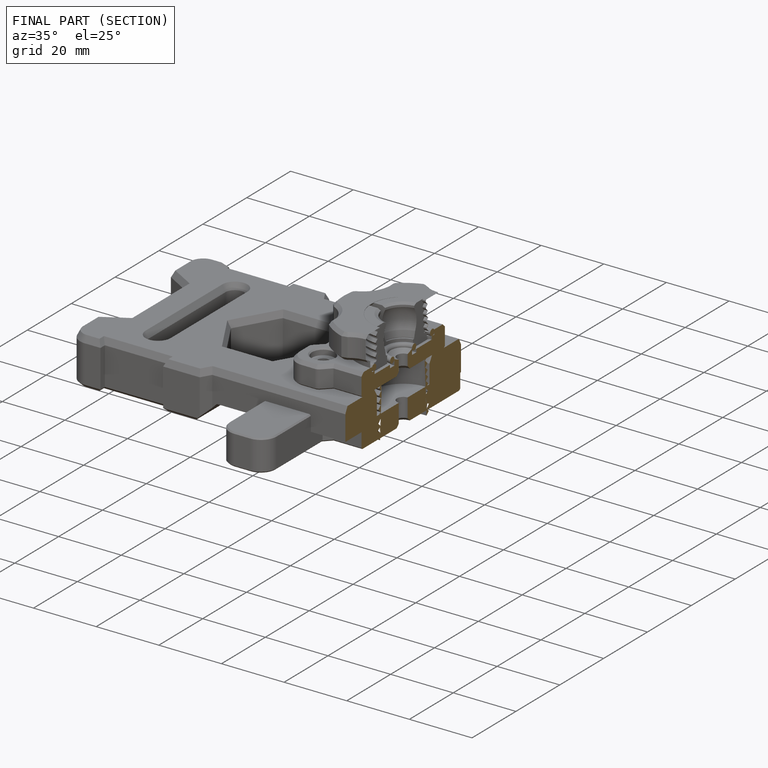
[diagram: finished part — half-section view (interior)]
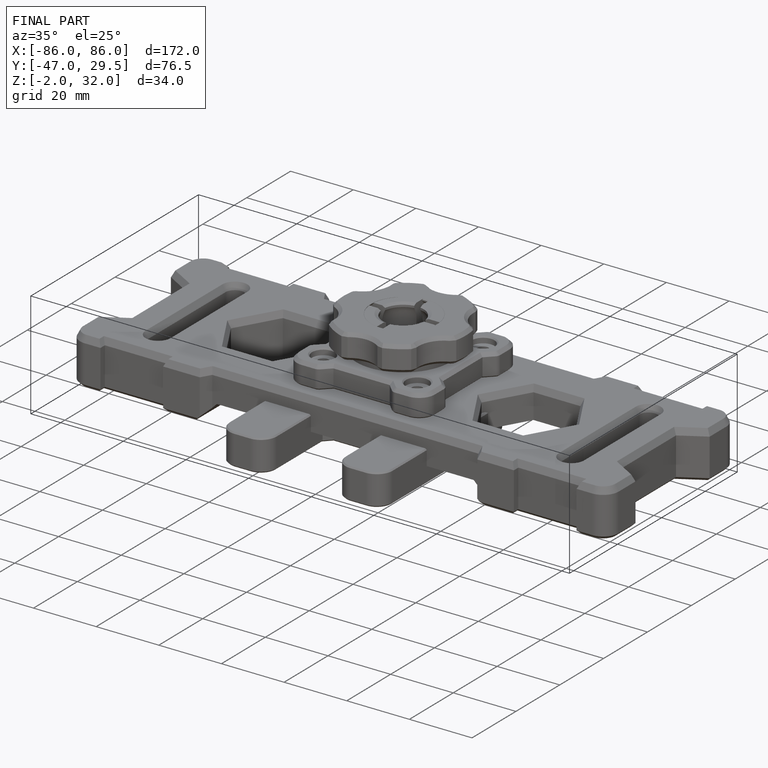
[diagram: finished part — iso view with bounding-box wireframe]
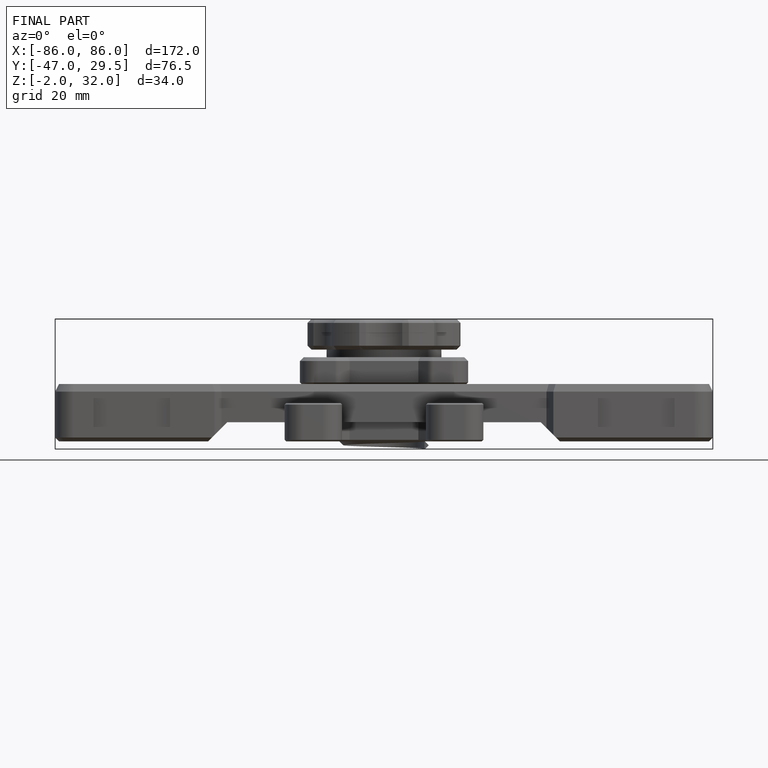
[diagram: finished part — front view with bounding-box wireframe]
